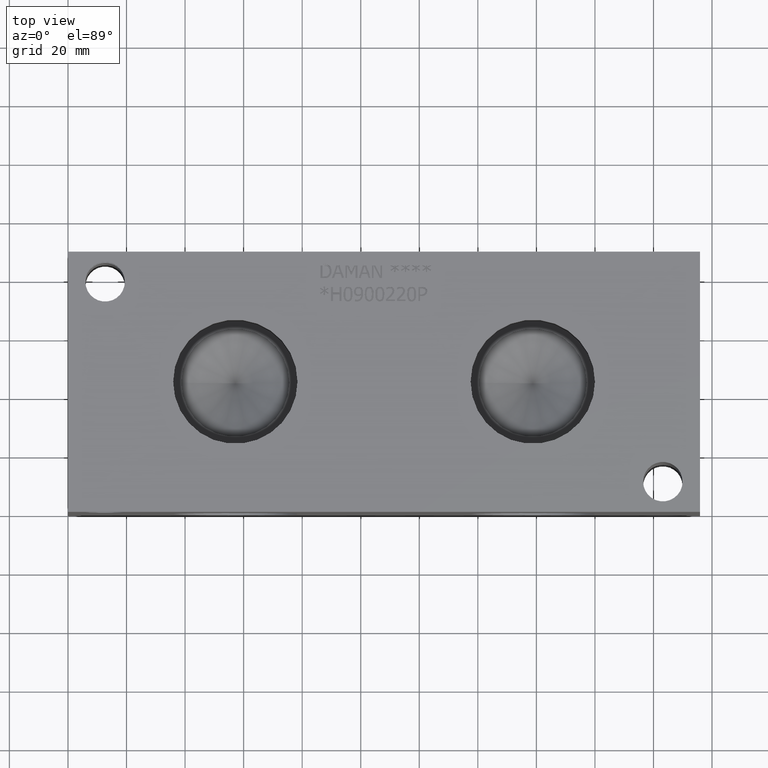
[diagram: clean part render]
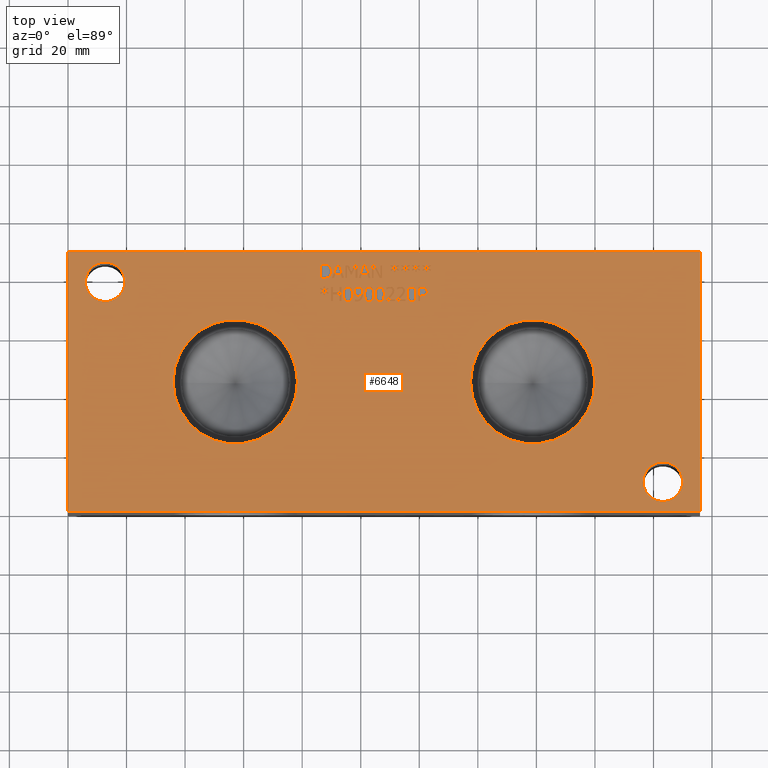
[diagram: same view with one face highlighted and labeled with its STEP entity id]
A machine part, top view. The second image highlights one B-rep face of the part: STEP entity #6648.
In plain terms, the highlighted planar face has unit normal (0, 0, 1).
Its self-contained STEP definition (entity closure, byte-faithful):
#48=CIRCLE('',#7001,6.7437);
#49=CIRCLE('',#7002,6.7437);
#50=CIRCLE('',#7003,6.7437);
#51=CIRCLE('',#7004,6.7437);
#52=CIRCLE('',#7005,21.2344);
#53=CIRCLE('',#7006,21.2344);
#54=CIRCLE('',#7007,21.2344);
#55=CIRCLE('',#7008,21.2344);
#110=B_SPLINE_CURVE_WITH_KNOTS('',2,(#8916,#8917,#8918,#8919),
 .UNSPECIFIED.,.F.,.F.,(3,1,3),(0.,1.,2.),.UNSPECIFIED.);
#112=B_SPLINE_CURVE_WITH_KNOTS('',2,(#8937,#8938,#8939,#8940),
 .UNSPECIFIED.,.F.,.F.,(3,1,3),(0.,1.,2.),.UNSPECIFIED.);
#114=B_SPLINE_CURVE_WITH_KNOTS('',2,(#8974,#8975,#8976,#8977),
 .UNSPECIFIED.,.F.,.F.,(3,1,3),(0.,1.,2.),.UNSPECIFIED.);
#116=B_SPLINE_CURVE_WITH_KNOTS('',2,(#8992,#8993,#8994,#8995),
 .UNSPECIFIED.,.F.,.F.,(3,1,3),(0.,1.,2.),.UNSPECIFIED.);
#118=B_SPLINE_CURVE_WITH_KNOTS('',2,(#9380,#9381,#9382,#9383),
 .UNSPECIFIED.,.F.,.F.,(3,1,3),(0.,1.,2.),.UNSPECIFIED.);
#119=B_SPLINE_CURVE_WITH_KNOTS('',2,(#9385,#9386,#9387,#9388),
 .UNSPECIFIED.,.F.,.F.,(3,1,3),(0.,1.,2.),.UNSPECIFIED.);
#120=B_SPLINE_CURVE_WITH_KNOTS('',2,(#9390,#9391,#9392,#9393),
 .UNSPECIFIED.,.F.,.F.,(3,1,3),(0.,1.,2.),.UNSPECIFIED.);
#121=B_SPLINE_CURVE_WITH_KNOTS('',2,(#9395,#9396,#9397,#9398),
 .UNSPECIFIED.,.F.,.F.,(3,1,3),(0.,1.,2.),.UNSPECIFIED.);
#122=B_SPLINE_CURVE_WITH_KNOTS('',2,(#9400,#9401,#9402,#9403),
 .UNSPECIFIED.,.F.,.F.,(3,1,3),(0.,1.,2.),.UNSPECIFIED.);
#123=B_SPLINE_CURVE_WITH_KNOTS('',2,(#9405,#9406,#9407,#9408),
 .UNSPECIFIED.,.F.,.F.,(3,1,3),(0.,1.,2.),.UNSPECIFIED.);
#124=B_SPLINE_CURVE_WITH_KNOTS('',2,(#9414,#9415,#9416,#9417),
 .UNSPECIFIED.,.F.,.F.,(3,1,3),(0.,1.,2.),.UNSPECIFIED.);
#125=B_SPLINE_CURVE_WITH_KNOTS('',2,(#9419,#9420,#9421,#9422),
 .UNSPECIFIED.,.F.,.F.,(3,1,3),(0.,1.,2.),.UNSPECIFIED.);
#126=B_SPLINE_CURVE_WITH_KNOTS('',2,(#9424,#9425,#9426,#9427),
 .UNSPECIFIED.,.F.,.F.,(3,1,3),(0.,1.,2.),.UNSPECIFIED.);
#127=B_SPLINE_CURVE_WITH_KNOTS('',2,(#9429,#9430,#9431,#9432),
 .UNSPECIFIED.,.F.,.F.,(3,1,3),(0.,1.,2.),.UNSPECIFIED.);
#128=B_SPLINE_CURVE_WITH_KNOTS('',2,(#9434,#9435,#9436,#9437),
 .UNSPECIFIED.,.F.,.F.,(3,1,3),(0.,1.,2.),.UNSPECIFIED.);
#129=B_SPLINE_CURVE_WITH_KNOTS('',2,(#9501,#9502,#9503,#9504),
 .UNSPECIFIED.,.F.,.F.,(3,1,3),(0.,1.,2.),.UNSPECIFIED.);
#130=B_SPLINE_CURVE_WITH_KNOTS('',2,(#9506,#9507,#9508,#9509),
 .UNSPECIFIED.,.F.,.F.,(3,1,3),(0.,1.,2.),.UNSPECIFIED.);
#131=B_SPLINE_CURVE_WITH_KNOTS('',2,(#9511,#9512,#9513,#9514),
 .UNSPECIFIED.,.F.,.F.,(3,1,3),(0.,1.,2.),.UNSPECIFIED.);
#132=B_SPLINE_CURVE_WITH_KNOTS('',2,(#9515,#9516,#9517,#9518),
 .UNSPECIFIED.,.F.,.F.,(3,1,3),(0.,1.,2.),.UNSPECIFIED.);
#133=B_SPLINE_CURVE_WITH_KNOTS('',2,(#9521,#9522,#9523,#9524),
 .UNSPECIFIED.,.F.,.F.,(3,1,3),(0.,1.,2.),.UNSPECIFIED.);
#134=B_SPLINE_CURVE_WITH_KNOTS('',2,(#9526,#9527,#9528,#9529),
 .UNSPECIFIED.,.F.,.F.,(3,1,3),(0.,1.,2.),.UNSPECIFIED.);
#135=B_SPLINE_CURVE_WITH_KNOTS('',2,(#9531,#9532,#9533,#9534),
 .UNSPECIFIED.,.F.,.F.,(3,1,3),(0.,1.,2.),.UNSPECIFIED.);
#136=B_SPLINE_CURVE_WITH_KNOTS('',2,(#9536,#9537,#9538,#9539),
 .UNSPECIFIED.,.F.,.F.,(3,1,3),(0.,1.,2.),.UNSPECIFIED.);
#137=B_SPLINE_CURVE_WITH_KNOTS('',2,(#9541,#9542,#9543,#9544),
 .UNSPECIFIED.,.F.,.F.,(3,1,3),(0.,1.,2.),.UNSPECIFIED.);
#138=B_SPLINE_CURVE_WITH_KNOTS('',2,(#9546,#9547,#9548,#9549),
 .UNSPECIFIED.,.F.,.F.,(3,1,3),(0.,1.,2.),.UNSPECIFIED.);
#139=B_SPLINE_CURVE_WITH_KNOTS('',2,(#9551,#9552,#9553,#9554),
 .UNSPECIFIED.,.F.,.F.,(3,1,3),(0.,1.,2.),.UNSPECIFIED.);
#140=B_SPLINE_CURVE_WITH_KNOTS('',2,(#9556,#9557,#9558,#9559),
 .UNSPECIFIED.,.F.,.F.,(3,1,3),(0.,1.,2.),.UNSPECIFIED.);
#141=B_SPLINE_CURVE_WITH_KNOTS('',2,(#9565,#9566,#9567,#9568),
 .UNSPECIFIED.,.F.,.F.,(3,1,3),(0.,1.,2.),.UNSPECIFIED.);
#142=B_SPLINE_CURVE_WITH_KNOTS('',2,(#9570,#9571,#9572,#9573),
 .UNSPECIFIED.,.F.,.F.,(3,1,3),(0.,1.,2.),.UNSPECIFIED.);
#143=B_SPLINE_CURVE_WITH_KNOTS('',2,(#9575,#9576,#9577,#9578),
 .UNSPECIFIED.,.F.,.F.,(3,1,3),(0.,1.,2.),.UNSPECIFIED.);
#144=B_SPLINE_CURVE_WITH_KNOTS('',2,(#9579,#9580,#9581,#9582),
 .UNSPECIFIED.,.F.,.F.,(3,1,3),(0.,1.,2.),.UNSPECIFIED.);
#145=B_SPLINE_CURVE_WITH_KNOTS('',2,(#9585,#9586,#9587,#9588),
 .UNSPECIFIED.,.F.,.F.,(3,1,3),(0.,1.,2.),.UNSPECIFIED.);
#146=B_SPLINE_CURVE_WITH_KNOTS('',2,(#9590,#9591,#9592,#9593),
 .UNSPECIFIED.,.F.,.F.,(3,1,3),(0.,1.,2.),.UNSPECIFIED.);
#147=B_SPLINE_CURVE_WITH_KNOTS('',2,(#9595,#9596,#9597,#9598),
 .UNSPECIFIED.,.F.,.F.,(3,1,3),(0.,1.,2.),.UNSPECIFIED.);
#148=B_SPLINE_CURVE_WITH_KNOTS('',2,(#9599,#9600,#9601,#9602),
 .UNSPECIFIED.,.F.,.F.,(3,1,3),(0.,1.,2.),.UNSPECIFIED.);
#149=B_SPLINE_CURVE_WITH_KNOTS('',2,(#9605,#9606,#9607,#9608),
 .UNSPECIFIED.,.F.,.F.,(3,1,3),(0.,1.,2.),.UNSPECIFIED.);
#150=B_SPLINE_CURVE_WITH_KNOTS('',2,(#9610,#9611,#9612,#9613),
 .UNSPECIFIED.,.F.,.F.,(3,1,3),(0.,1.,2.),.UNSPECIFIED.);
#151=B_SPLINE_CURVE_WITH_KNOTS('',2,(#9615,#9616,#9617,#9618),
 .UNSPECIFIED.,.F.,.F.,(3,1,3),(0.,1.,2.),.UNSPECIFIED.);
#152=B_SPLINE_CURVE_WITH_KNOTS('',2,(#9619,#9620,#9621,#9622),
 .UNSPECIFIED.,.F.,.F.,(3,1,3),(0.,1.,2.),.UNSPECIFIED.);
#153=B_SPLINE_CURVE_WITH_KNOTS('',2,(#9631,#9632,#9633,#9634),
 .UNSPECIFIED.,.F.,.F.,(3,1,3),(0.,1.,2.),.UNSPECIFIED.);
#154=B_SPLINE_CURVE_WITH_KNOTS('',2,(#9636,#9637,#9638,#9639),
 .UNSPECIFIED.,.F.,.F.,(3,1,3),(0.,1.,2.),.UNSPECIFIED.);
#155=B_SPLINE_CURVE_WITH_KNOTS('',2,(#9641,#9642,#9643,#9644),
 .UNSPECIFIED.,.F.,.F.,(3,1,3),(0.,1.,2.),.UNSPECIFIED.);
#156=B_SPLINE_CURVE_WITH_KNOTS('',2,(#9646,#9647,#9648,#9649),
 .UNSPECIFIED.,.F.,.F.,(3,1,3),(0.,1.,2.),.UNSPECIFIED.);
#157=B_SPLINE_CURVE_WITH_KNOTS('',2,(#9651,#9652,#9653,#9654),
 .UNSPECIFIED.,.F.,.F.,(3,1,3),(0.,1.,2.),.UNSPECIFIED.);
#158=B_SPLINE_CURVE_WITH_KNOTS('',2,(#9656,#9657,#9658,#9659),
 .UNSPECIFIED.,.F.,.F.,(3,1,3),(0.,1.,2.),.UNSPECIFIED.);
#159=B_SPLINE_CURVE_WITH_KNOTS('',2,(#9665,#9666,#9667,#9668),
 .UNSPECIFIED.,.F.,.F.,(3,1,3),(0.,1.,2.),.UNSPECIFIED.);
#160=B_SPLINE_CURVE_WITH_KNOTS('',2,(#9670,#9671,#9672,#9673),
 .UNSPECIFIED.,.F.,.F.,(3,1,3),(0.,1.,2.),.UNSPECIFIED.);
#161=B_SPLINE_CURVE_WITH_KNOTS('',2,(#9675,#9676,#9677,#9678),
 .UNSPECIFIED.,.F.,.F.,(3,1,3),(0.,1.,2.),.UNSPECIFIED.);
#162=B_SPLINE_CURVE_WITH_KNOTS('',2,(#9680,#9681,#9682,#9683),
 .UNSPECIFIED.,.F.,.F.,(3,1,3),(0.,1.,2.),.UNSPECIFIED.);
#163=B_SPLINE_CURVE_WITH_KNOTS('',2,(#9685,#9686,#9687,#9688),
 .UNSPECIFIED.,.F.,.F.,(3,1,3),(0.,1.,2.),.UNSPECIFIED.);
#164=B_SPLINE_CURVE_WITH_KNOTS('',2,(#9692,#9693,#9694,#9695),
 .UNSPECIFIED.,.F.,.F.,(3,1,3),(0.,1.,2.),.UNSPECIFIED.);
#165=B_SPLINE_CURVE_WITH_KNOTS('',2,(#9697,#9698,#9699,#9700),
 .UNSPECIFIED.,.F.,.F.,(3,1,3),(0.,1.,2.),.UNSPECIFIED.);
#166=B_SPLINE_CURVE_WITH_KNOTS('',2,(#9702,#9703,#9704,#9705),
 .UNSPECIFIED.,.F.,.F.,(3,1,3),(0.,1.,2.),.UNSPECIFIED.);
#167=B_SPLINE_CURVE_WITH_KNOTS('',2,(#9706,#9707,#9708,#9709),
 .UNSPECIFIED.,.F.,.F.,(3,1,3),(0.,1.,2.),.UNSPECIFIED.);
#168=B_SPLINE_CURVE_WITH_KNOTS('',2,(#9712,#9713,#9714,#9715),
 .UNSPECIFIED.,.F.,.F.,(3,1,3),(0.,1.,2.),.UNSPECIFIED.);
#169=B_SPLINE_CURVE_WITH_KNOTS('',2,(#9717,#9718,#9719,#9720),
 .UNSPECIFIED.,.F.,.F.,(3,1,3),(0.,1.,2.),.UNSPECIFIED.);
#170=B_SPLINE_CURVE_WITH_KNOTS('',2,(#9722,#9723,#9724,#9725),
 .UNSPECIFIED.,.F.,.F.,(3,1,3),(0.,1.,2.),.UNSPECIFIED.);
#171=B_SPLINE_CURVE_WITH_KNOTS('',2,(#9736,#9737,#9738,#9739),
 .UNSPECIFIED.,.F.,.F.,(3,1,3),(0.,1.,2.),.UNSPECIFIED.);
#420=FACE_BOUND('',#955,.T.);
#421=FACE_BOUND('',#956,.T.);
#422=FACE_BOUND('',#957,.T.);
#423=FACE_BOUND('',#958,.T.);
#424=FACE_BOUND('',#959,.T.);
#425=FACE_BOUND('',#960,.T.);
#426=FACE_BOUND('',#961,.T.);
#427=FACE_BOUND('',#962,.T.);
#428=FACE_BOUND('',#963,.T.);
#429=FACE_BOUND('',#964,.T.);
#430=FACE_BOUND('',#965,.T.);
#431=FACE_BOUND('',#966,.T.);
#432=FACE_BOUND('',#967,.T.);
#433=FACE_BOUND('',#968,.T.);
#434=FACE_BOUND('',#969,.T.);
#435=FACE_BOUND('',#970,.T.);
#436=FACE_BOUND('',#971,.T.);
#437=FACE_BOUND('',#972,.T.);
#438=FACE_BOUND('',#973,.T.);
#439=FACE_BOUND('',#974,.T.);
#440=FACE_BOUND('',#975,.T.);
#441=FACE_BOUND('',#976,.T.);
#442=FACE_BOUND('',#977,.T.);
#605=FACE_OUTER_BOUND('',#954,.T.);
#954=EDGE_LOOP('',(#4768,#4769,#4770,#4771));
#955=EDGE_LOOP('',(#4772,#4773));
#956=EDGE_LOOP('',(#4774,#4775));
#957=EDGE_LOOP('',(#4776,#4777));
#958=EDGE_LOOP('',(#4778,#4779));
#959=EDGE_LOOP('',(#4780,#4781,#4782,#4783,#4784,#4785,#4786,#4787,#4788,
#4789,#4790,#4791,#4792,#4793,#4794,#4795,#4796));
#960=EDGE_LOOP('',(#4797,#4798,#4799,#4800,#4801,#4802,#4803,#4804,#4805,
#4806,#4807,#4808));
#961=EDGE_LOOP('',(#4809,#4810,#4811,#4812,#4813,#4814,#4815,#4816,#4817,
#4818,#4819,#4820,#4821,#4822,#4823,#4824,#4825,#4826));
#962=EDGE_LOOP('',(#4827,#4828,#4829,#4830));
#963=EDGE_LOOP('',(#4831,#4832,#4833,#4834,#4835,#4836,#4837,#4838,#4839,
#4840,#4841,#4842,#4843,#4844));
#964=EDGE_LOOP('',(#4845,#4846,#4847,#4848));
#965=EDGE_LOOP('',(#4849,#4850,#4851,#4852));
#966=EDGE_LOOP('',(#4853,#4854,#4855,#4856,#4857,#4858,#4859,#4860,#4861,
#4862,#4863,#4864,#4865,#4866,#4867,#4868,#4869));
#967=EDGE_LOOP('',(#4870,#4871,#4872,#4873));
#968=EDGE_LOOP('',(#4874,#4875,#4876,#4877,#4878,#4879,#4880,#4881,#4882));
#969=EDGE_LOOP('',(#4883,#4884,#4885,#4886,#4887,#4888,#4889,#4890,#4891,
#4892,#4893,#4894,#4895,#4896,#4897,#4898,#4899,#4900));
#970=EDGE_LOOP('',(#4901,#4902,#4903,#4904,#4905,#4906,#4907,#4908,#4909,
#4910,#4911,#4912,#4913,#4914,#4915,#4916,#4917,#4918));
#971=EDGE_LOOP('',(#4919,#4920,#4921,#4922,#4923,#4924,#4925,#4926,#4927,
#4928));
#972=EDGE_LOOP('',(#4929,#4930,#4931,#4932,#4933,#4934,#4935,#4936));
#973=EDGE_LOOP('',(#4937,#4938,#4939,#4940,#4941,#4942,#4943));
#974=EDGE_LOOP('',(#4944,#4945,#4946,#4947,#4948,#4949,#4950,#4951));
#975=EDGE_LOOP('',(#4952,#4953,#4954,#4955,#4956,#4957,#4958,#4959,#4960,
#4961,#4962,#4963,#4964));
#976=EDGE_LOOP('',(#4965,#4966,#4967,#4968,#4969,#4970,#4971,#4972,#4973,
#4974,#4975,#4976,#4977,#4978,#4979,#4980,#4981,#4982));
#977=EDGE_LOOP('',(#4983,#4984,#4985,#4986,#4987,#4988,#4989,#4990,#4991,
#4992,#4993,#4994,#4995,#4996,#4997,#4998,#4999,#5000));
#1205=LINE('',#8451,#1873);
#1209=LINE('',#8459,#1877);
#1212=LINE('',#8465,#1880);
#1215=LINE('',#8471,#1883);
#1218=LINE('',#8477,#1886);
#1221=LINE('',#8483,#1889);
#1224=LINE('',#8489,#1892);
#1227=LINE('',#8495,#1895);
#1230=LINE('',#8501,#1898);
#1233=LINE('',#8507,#1901);
#1236=LINE('',#8513,#1904);
#1239=LINE('',#8519,#1907);
#1242=LINE('',#8525,#1910);
#1245=LINE('',#8531,#1913);
#1248=LINE('',#8537,#1916);
#1251=LINE('',#8543,#1919);
#1254=LINE('',#8549,#1922);
#1257=LINE('',#8554,#1925);
#1259=LINE('',#8560,#1927);
#1263=LINE('',#8568,#1931);
#1266=LINE('',#8574,#1934);
#1269=LINE('',#8580,#1937);
#1272=LINE('',#8586,#1940);
#1275=LINE('',#8592,#1943);
#1278=LINE('',#8598,#1946);
#1281=LINE('',#8604,#1949);
#1284=LINE('',#8610,#1952);
#1287=LINE('',#8616,#1955);
#1290=LINE('',#8622,#1958);
#1293=LINE('',#8628,#1961);
#1296=LINE('',#8634,#1964);
#1299=LINE('',#8640,#1967);
#1302=LINE('',#8646,#1970);
#1305=LINE('',#8652,#1973);
#1308=LINE('',#8658,#1976);
#1311=LINE('',#8663,#1979);
#1313=LINE('',#8669,#1981);
#1317=LINE('',#8677,#1985);
#1320=LINE('',#8683,#1988);
#1323=LINE('',#8689,#1991);
#1326=LINE('',#8695,#1994);
#1329=LINE('',#8701,#1997);
#1332=LINE('',#8707,#2000);
#1335=LINE('',#8713,#2003);
#1338=LINE('',#8719,#2006);
#1341=LINE('',#8725,#2009);
#1344=LINE('',#8731,#2012);
#1347=LINE('',#8737,#2015);
#1350=LINE('',#8742,#2018);
#1361=LINE('',#8766,#2029);
#1365=LINE('',#8774,#2033);
#1368=LINE('',#8780,#2036);
#1371=LINE('',#8786,#2039);
#1374=LINE('',#8792,#2042);
#1377=LINE('',#8798,#2045);
#1380=LINE('',#8804,#2048);
#1383=LINE('',#8809,#2051);
#1401=LINE('',#8949,#2069);
#1404=LINE('',#8955,#2072);
#1407=LINE('',#8961,#2075);
#1420=LINE('',#9022,#2088);
#1424=LINE('',#9030,#2092);
#1427=LINE('',#9036,#2095);
#1430=LINE('',#9042,#2098);
#1433=LINE('',#9048,#2101);
#1436=LINE('',#9054,#2104);
#1439=LINE('',#9060,#2107);
#1442=LINE('',#9065,#2110);
#1444=LINE('',#9071,#2112);
#1448=LINE('',#9079,#2116);
#1451=LINE('',#9085,#2119);
#1454=LINE('',#9091,#2122);
#1457=LINE('',#9097,#2125);
#1460=LINE('',#9103,#2128);
#1463=LINE('',#9109,#2131);
#1466=LINE('',#9115,#2134);
#1469=LINE('',#9121,#2137);
#1472=LINE('',#9126,#2140);
#1474=LINE('',#9132,#2142);
#1478=LINE('',#9140,#2146);
#1481=LINE('',#9146,#2149);
#1484=LINE('',#9152,#2152);
#1487=LINE('',#9158,#2155);
#1490=LINE('',#9164,#2158);
#1493=LINE('',#9170,#2161);
#1496=LINE('',#9176,#2164);
#1499=LINE('',#9182,#2167);
#1502=LINE('',#9188,#2170);
#1505=LINE('',#9194,#2173);
#1508=LINE('',#9200,#2176);
#1511=LINE('',#9206,#2179);
#1514=LINE('',#9212,#2182);
#1517=LINE('',#9218,#2185);
#1520=LINE('',#9224,#2188);
#1523=LINE('',#9230,#2191);
#1526=LINE('',#9235,#2194);
#1528=LINE('',#9241,#2196);
#1532=LINE('',#9249,#2200);
#1535=LINE('',#9255,#2203);
#1538=LINE('',#9261,#2206);
#1541=LINE('',#9267,#2209);
#1544=LINE('',#9273,#2212);
#1547=LINE('',#9279,#2215);
#1550=LINE('',#9285,#2218);
#1553=LINE('',#9291,#2221);
#1556=LINE('',#9297,#2224);
#1559=LINE('',#9303,#2227);
#1562=LINE('',#9309,#2230);
#1565=LINE('',#9315,#2233);
#1568=LINE('',#9321,#2236);
#1571=LINE('',#9327,#2239);
#1574=LINE('',#9333,#2242);
#1577=LINE('',#9339,#2245);
#1580=LINE('',#9344,#2248);
#1582=LINE('',#9350,#2250);
#1583=LINE('',#9352,#2251);
#1584=LINE('',#9354,#2252);
#1585=LINE('',#9355,#2253);
#1586=LINE('',#9374,#2254);
#1587=LINE('',#9376,#2255);
#1588=LINE('',#9378,#2256);
#1589=LINE('',#9410,#2257);
#1590=LINE('',#9412,#2258);
#1591=LINE('',#9438,#2259);
#1592=LINE('',#9441,#2260);
#1593=LINE('',#9443,#2261);
#1594=LINE('',#9445,#2262);
#1595=LINE('',#9447,#2263);
#1596=LINE('',#9449,#2264);
#1597=LINE('',#9451,#2265);
#1598=LINE('',#9453,#2266);
#1599=LINE('',#9455,#2267);
#1600=LINE('',#9457,#2268);
#1601=LINE('',#9459,#2269);
#1602=LINE('',#9461,#2270);
#1603=LINE('',#9462,#2271);
#1604=LINE('',#9465,#2272);
#1605=LINE('',#9467,#2273);
#1606=LINE('',#9469,#2274);
#1607=LINE('',#9471,#2275);
#1608=LINE('',#9473,#2276);
#1609=LINE('',#9475,#2277);
#1610=LINE('',#9477,#2278);
#1611=LINE('',#9479,#2279);
#1612=LINE('',#9481,#2280);
#1613=LINE('',#9483,#2281);
#1614=LINE('',#9485,#2282);
#1615=LINE('',#9487,#2283);
#1616=LINE('',#9489,#2284);
#1617=LINE('',#9491,#2285);
#1618=LINE('',#9493,#2286);
#1619=LINE('',#9495,#2287);
#1620=LINE('',#9497,#2288);
#1621=LINE('',#9498,#2289);
#1622=LINE('',#9561,#2290);
#1623=LINE('',#9563,#2291);
#1624=LINE('',#9625,#2292);
#1625=LINE('',#9627,#2293);
#1626=LINE('',#9629,#2294);
#1627=LINE('',#9661,#2295);
#1628=LINE('',#9663,#2296);
#1629=LINE('',#9689,#2297);
#1630=LINE('',#9727,#2298);
#1631=LINE('',#9729,#2299);
#1632=LINE('',#9731,#2300);
#1633=LINE('',#9733,#2301);
#1634=LINE('',#9735,#2302);
#1873=VECTOR('',#7175,10.);
#1877=VECTOR('',#7181,10.);
#1880=VECTOR('',#7186,10.);
#1883=VECTOR('',#7191,10.);
#1886=VECTOR('',#7196,10.);
#1889=VECTOR('',#7201,10.);
#1892=VECTOR('',#7206,10.);
#1895=VECTOR('',#7211,10.);
#1898=VECTOR('',#7216,10.);
#1901=VECTOR('',#7221,10.);
#1904=VECTOR('',#7226,10.);
#1907=VECTOR('',#7231,10.);
#1910=VECTOR('',#7236,10.);
#1913=VECTOR('',#7241,10.);
#1916=VECTOR('',#7246,10.);
#1919=VECTOR('',#7251,10.);
#1922=VECTOR('',#7256,10.);
#1925=VECTOR('',#7261,10.);
#1927=VECTOR('',#7267,10.);
#1931=VECTOR('',#7273,10.);
#1934=VECTOR('',#7278,10.);
#1937=VECTOR('',#7283,10.);
#1940=VECTOR('',#7288,10.);
#1943=VECTOR('',#7293,10.);
#1946=VECTOR('',#7298,10.);
#1949=VECTOR('',#7303,10.);
#1952=VECTOR('',#7308,10.);
#1955=VECTOR('',#7313,10.);
#1958=VECTOR('',#7318,10.);
#1961=VECTOR('',#7323,10.);
#1964=VECTOR('',#7328,10.);
#1967=VECTOR('',#7333,10.);
#1970=VECTOR('',#7338,10.);
#1973=VECTOR('',#7343,10.);
#1976=VECTOR('',#7348,10.);
#1979=VECTOR('',#7353,10.);
#1981=VECTOR('',#7359,10.);
#1985=VECTOR('',#7365,10.);
#1988=VECTOR('',#7370,10.);
#1991=VECTOR('',#7375,10.);
#1994=VECTOR('',#7380,10.);
#1997=VECTOR('',#7385,10.);
#2000=VECTOR('',#7390,10.);
#2003=VECTOR('',#7395,10.);
#2006=VECTOR('',#7400,10.);
#2009=VECTOR('',#7405,10.);
#2012=VECTOR('',#7410,10.);
#2015=VECTOR('',#7415,10.);
#2018=VECTOR('',#7420,10.);
#2029=VECTOR('',#7441,10.);
#2033=VECTOR('',#7447,10.);
#2036=VECTOR('',#7452,10.);
#2039=VECTOR('',#7457,10.);
#2042=VECTOR('',#7462,10.);
#2045=VECTOR('',#7467,10.);
#2048=VECTOR('',#7472,10.);
#2051=VECTOR('',#7477,10.);
#2069=VECTOR('',#7505,10.);
#2072=VECTOR('',#7510,10.);
#2075=VECTOR('',#7515,10.);
#2088=VECTOR('',#7538,10.);
#2092=VECTOR('',#7544,10.);
#2095=VECTOR('',#7549,10.);
#2098=VECTOR('',#7554,10.);
#2101=VECTOR('',#7559,10.);
#2104=VECTOR('',#7564,10.);
#2107=VECTOR('',#7569,10.);
#2110=VECTOR('',#7574,10.);
#2112=VECTOR('',#7580,10.);
#2116=VECTOR('',#7586,10.);
#2119=VECTOR('',#7591,10.);
#2122=VECTOR('',#7596,10.);
#2125=VECTOR('',#7601,10.);
#2128=VECTOR('',#7606,10.);
#2131=VECTOR('',#7611,10.);
#2134=VECTOR('',#7616,10.);
#2137=VECTOR('',#7621,10.);
#2140=VECTOR('',#7626,10.);
#2142=VECTOR('',#7632,10.);
#2146=VECTOR('',#7638,10.);
#2149=VECTOR('',#7643,10.);
#2152=VECTOR('',#7648,10.);
#2155=VECTOR('',#7653,10.);
#2158=VECTOR('',#7658,10.);
#2161=VECTOR('',#7663,10.);
#2164=VECTOR('',#7668,10.);
#2167=VECTOR('',#7673,10.);
#2170=VECTOR('',#7678,10.);
#2173=VECTOR('',#7683,10.);
#2176=VECTOR('',#7688,10.);
#2179=VECTOR('',#7693,10.);
#2182=VECTOR('',#7698,10.);
#2185=VECTOR('',#7703,10.);
#2188=VECTOR('',#7708,10.);
#2191=VECTOR('',#7713,10.);
#2194=VECTOR('',#7718,10.);
#2196=VECTOR('',#7724,10.);
#2200=VECTOR('',#7730,10.);
#2203=VECTOR('',#7735,10.);
#2206=VECTOR('',#7740,10.);
#2209=VECTOR('',#7745,10.);
#2212=VECTOR('',#7750,10.);
#2215=VECTOR('',#7755,10.);
#2218=VECTOR('',#7760,10.);
#2221=VECTOR('',#7765,10.);
#2224=VECTOR('',#7770,10.);
#2227=VECTOR('',#7775,10.);
#2230=VECTOR('',#7780,10.);
#2233=VECTOR('',#7785,10.);
#2236=VECTOR('',#7790,10.);
#2239=VECTOR('',#7795,10.);
#2242=VECTOR('',#7800,10.);
#2245=VECTOR('',#7805,10.);
#2248=VECTOR('',#7810,10.);
#2250=VECTOR('',#7816,10.);
#2251=VECTOR('',#7817,10.);
#2252=VECTOR('',#7818,10.);
#2253=VECTOR('',#7819,10.);
#2254=VECTOR('',#7836,10.);
#2255=VECTOR('',#7837,10.);
#2256=VECTOR('',#7838,10.);
#2257=VECTOR('',#7839,10.);
#2258=VECTOR('',#7840,10.);
#2259=VECTOR('',#7841,10.);
#2260=VECTOR('',#7842,10.);
#2261=VECTOR('',#7843,10.);
#2262=VECTOR('',#7844,10.);
#2263=VECTOR('',#7845,10.);
#2264=VECTOR('',#7846,10.);
#2265=VECTOR('',#7847,10.);
#2266=VECTOR('',#7848,10.);
#2267=VECTOR('',#7849,10.);
#2268=VECTOR('',#7850,10.);
#2269=VECTOR('',#7851,10.);
#2270=VECTOR('',#7852,10.);
#2271=VECTOR('',#7853,10.);
#2272=VECTOR('',#7854,10.);
#2273=VECTOR('',#7855,10.);
#2274=VECTOR('',#7856,10.);
#2275=VECTOR('',#7857,10.);
#2276=VECTOR('',#7858,10.);
#2277=VECTOR('',#7859,10.);
#2278=VECTOR('',#7860,10.);
#2279=VECTOR('',#7861,10.);
#2280=VECTOR('',#7862,10.);
#2281=VECTOR('',#7863,10.);
#2282=VECTOR('',#7864,10.);
#2283=VECTOR('',#7865,10.);
#2284=VECTOR('',#7866,10.);
#2285=VECTOR('',#7867,10.);
#2286=VECTOR('',#7868,10.);
#2287=VECTOR('',#7869,10.);
#2288=VECTOR('',#7870,10.);
#2289=VECTOR('',#7871,10.);
#2290=VECTOR('',#7872,10.);
#2291=VECTOR('',#7873,10.);
#2292=VECTOR('',#7874,10.);
#2293=VECTOR('',#7875,10.);
#2294=VECTOR('',#7876,10.);
#2295=VECTOR('',#7877,10.);
#2296=VECTOR('',#7878,10.);
#2297=VECTOR('',#7879,10.);
#2298=VECTOR('',#7880,10.);
#2299=VECTOR('',#7881,10.);
#2300=VECTOR('',#7882,10.);
#2301=VECTOR('',#7883,10.);
#2302=VECTOR('',#7884,10.);
#2541=VERTEX_POINT('',#8449);
#2542=VERTEX_POINT('',#8450);
#2545=VERTEX_POINT('',#8458);
#2547=VERTEX_POINT('',#8464);
#2549=VERTEX_POINT('',#8470);
#2551=VERTEX_POINT('',#8476);
#2553=VERTEX_POINT('',#8482);
#2555=VERTEX_POINT('',#8488);
#2557=VERTEX_POINT('',#8494);
#2559=VERTEX_POINT('',#8500);
#2561=VERTEX_POINT('',#8506);
#2563=VERTEX_POINT('',#8512);
#2565=VERTEX_POINT('',#8518);
#2567=VERTEX_POINT('',#8524);
#2569=VERTEX_POINT('',#8530);
#2571=VERTEX_POINT('',#8536);
#2573=VERTEX_POINT('',#8542);
#2575=VERTEX_POINT('',#8548);
#2577=VERTEX_POINT('',#8558);
#2578=VERTEX_POINT('',#8559);
#2581=VERTEX_POINT('',#8567);
#2583=VERTEX_POINT('',#8573);
#2585=VERTEX_POINT('',#8579);
#2587=VERTEX_POINT('',#8585);
#2589=VERTEX_POINT('',#8591);
#2591=VERTEX_POINT('',#8597);
#2593=VERTEX_POINT('',#8603);
#2595=VERTEX_POINT('',#8609);
#2597=VERTEX_POINT('',#8615);
#2599=VERTEX_POINT('',#8621);
#2601=VERTEX_POINT('',#8627);
#2603=VERTEX_POINT('',#8633);
#2605=VERTEX_POINT('',#8639);
#2607=VERTEX_POINT('',#8645);
#2609=VERTEX_POINT('',#8651);
#2611=VERTEX_POINT('',#8657);
#2613=VERTEX_POINT('',#8667);
#2614=VERTEX_POINT('',#8668);
#2617=VERTEX_POINT('',#8676);
#2619=VERTEX_POINT('',#8682);
#2621=VERTEX_POINT('',#8688);
#2623=VERTEX_POINT('',#8694);
#2625=VERTEX_POINT('',#8700);
#2627=VERTEX_POINT('',#8706);
#2629=VERTEX_POINT('',#8712);
#2631=VERTEX_POINT('',#8718);
#2633=VERTEX_POINT('',#8724);
#2635=VERTEX_POINT('',#8730);
#2637=VERTEX_POINT('',#8736);
#2645=VERTEX_POINT('',#8764);
#2646=VERTEX_POINT('',#8765);
#2649=VERTEX_POINT('',#8773);
#2651=VERTEX_POINT('',#8779);
#2653=VERTEX_POINT('',#8785);
#2655=VERTEX_POINT('',#8791);
#2657=VERTEX_POINT('',#8797);
#2659=VERTEX_POINT('',#8803);
#2675=VERTEX_POINT('',#8914);
#2676=VERTEX_POINT('',#8915);
#2679=VERTEX_POINT('',#8936);
#2681=VERTEX_POINT('',#8948);
#2683=VERTEX_POINT('',#8954);
#2685=VERTEX_POINT('',#8960);
#2687=VERTEX_POINT('',#8973);
#2695=VERTEX_POINT('',#9020);
#2696=VERTEX_POINT('',#9021);
#2699=VERTEX_POINT('',#9029);
#2701=VERTEX_POINT('',#9035);
#2703=VERTEX_POINT('',#9041);
#2705=VERTEX_POINT('',#9047);
#2707=VERTEX_POINT('',#9053);
#2709=VERTEX_POINT('',#9059);
#2711=VERTEX_POINT('',#9069);
#2712=VERTEX_POINT('',#9070);
#2715=VERTEX_POINT('',#9078);
#2717=VERTEX_POINT('',#9084);
#2719=VERTEX_POINT('',#9090);
#2721=VERTEX_POINT('',#9096);
#2723=VERTEX_POINT('',#9102);
#2725=VERTEX_POINT('',#9108);
#2727=VERTEX_POINT('',#9114);
#2729=VERTEX_POINT('',#9120);
#2731=VERTEX_POINT('',#9130);
#2732=VERTEX_POINT('',#9131);
#2735=VERTEX_POINT('',#9139);
#2737=VERTEX_POINT('',#9145);
#2739=VERTEX_POINT('',#9151);
#2741=VERTEX_POINT('',#9157);
#2743=VERTEX_POINT('',#9163);
#2745=VERTEX_POINT('',#9169);
#2747=VERTEX_POINT('',#9175);
#2749=VERTEX_POINT('',#9181);
#2751=VERTEX_POINT('',#9187);
#2753=VERTEX_POINT('',#9193);
#2755=VERTEX_POINT('',#9199);
#2757=VERTEX_POINT('',#9205);
#2759=VERTEX_POINT('',#9211);
#2761=VERTEX_POINT('',#9217);
#2763=VERTEX_POINT('',#9223);
#2765=VERTEX_POINT('',#9229);
#2767=VERTEX_POINT('',#9239);
#2768=VERTEX_POINT('',#9240);
#2771=VERTEX_POINT('',#9248);
#2773=VERTEX_POINT('',#9254);
#2775=VERTEX_POINT('',#9260);
#2777=VERTEX_POINT('',#9266);
#2779=VERTEX_POINT('',#9272);
#2781=VERTEX_POINT('',#9278);
#2783=VERTEX_POINT('',#9284);
#2785=VERTEX_POINT('',#9290);
#2787=VERTEX_POINT('',#9296);
#2789=VERTEX_POINT('',#9302);
#2791=VERTEX_POINT('',#9308);
#2793=VERTEX_POINT('',#9314);
#2795=VERTEX_POINT('',#9320);
#2797=VERTEX_POINT('',#9326);
#2799=VERTEX_POINT('',#9332);
#2801=VERTEX_POINT('',#9338);
#2803=VERTEX_POINT('',#9348);
#2804=VERTEX_POINT('',#9349);
#2805=VERTEX_POINT('',#9351);
#2806=VERTEX_POINT('',#9353);
#2807=VERTEX_POINT('',#9356);
#2808=VERTEX_POINT('',#9357);
#2809=VERTEX_POINT('',#9360);
#2810=VERTEX_POINT('',#9361);
#2811=VERTEX_POINT('',#9364);
#2812=VERTEX_POINT('',#9365);
#2813=VERTEX_POINT('',#9368);
#2814=VERTEX_POINT('',#9369);
#2815=VERTEX_POINT('',#9372);
#2816=VERTEX_POINT('',#9373);
#2817=VERTEX_POINT('',#9375);
#2818=VERTEX_POINT('',#9377);
#2819=VERTEX_POINT('',#9379);
#2820=VERTEX_POINT('',#9384);
#2821=VERTEX_POINT('',#9389);
#2822=VERTEX_POINT('',#9394);
#2823=VERTEX_POINT('',#9399);
#2824=VERTEX_POINT('',#9404);
#2825=VERTEX_POINT('',#9409);
#2826=VERTEX_POINT('',#9411);
#2827=VERTEX_POINT('',#9413);
#2828=VERTEX_POINT('',#9418);
#2829=VERTEX_POINT('',#9423);
#2830=VERTEX_POINT('',#9428);
#2831=VERTEX_POINT('',#9433);
#2832=VERTEX_POINT('',#9439);
#2833=VERTEX_POINT('',#9440);
#2834=VERTEX_POINT('',#9442);
#2835=VERTEX_POINT('',#9444);
#2836=VERTEX_POINT('',#9446);
#2837=VERTEX_POINT('',#9448);
#2838=VERTEX_POINT('',#9450);
#2839=VERTEX_POINT('',#9452);
#2840=VERTEX_POINT('',#9454);
#2841=VERTEX_POINT('',#9456);
#2842=VERTEX_POINT('',#9458);
#2843=VERTEX_POINT('',#9460);
#2844=VERTEX_POINT('',#9463);
#2845=VERTEX_POINT('',#9464);
#2846=VERTEX_POINT('',#9466);
#2847=VERTEX_POINT('',#9468);
#2848=VERTEX_POINT('',#9470);
#2849=VERTEX_POINT('',#9472);
#2850=VERTEX_POINT('',#9474);
#2851=VERTEX_POINT('',#9476);
#2852=VERTEX_POINT('',#9478);
#2853=VERTEX_POINT('',#9480);
#2854=VERTEX_POINT('',#9482);
#2855=VERTEX_POINT('',#9484);
#2856=VERTEX_POINT('',#9486);
#2857=VERTEX_POINT('',#9488);
#2858=VERTEX_POINT('',#9490);
#2859=VERTEX_POINT('',#9492);
#2860=VERTEX_POINT('',#9494);
#2861=VERTEX_POINT('',#9496);
#2862=VERTEX_POINT('',#9499);
#2863=VERTEX_POINT('',#9500);
#2864=VERTEX_POINT('',#9505);
#2865=VERTEX_POINT('',#9510);
#2866=VERTEX_POINT('',#9519);
#2867=VERTEX_POINT('',#9520);
#2868=VERTEX_POINT('',#9525);
#2869=VERTEX_POINT('',#9530);
#2870=VERTEX_POINT('',#9535);
#2871=VERTEX_POINT('',#9540);
#2872=VERTEX_POINT('',#9545);
#2873=VERTEX_POINT('',#9550);
#2874=VERTEX_POINT('',#9555);
#2875=VERTEX_POINT('',#9560);
#2876=VERTEX_POINT('',#9562);
#2877=VERTEX_POINT('',#9564);
#2878=VERTEX_POINT('',#9569);
#2879=VERTEX_POINT('',#9574);
#2880=VERTEX_POINT('',#9583);
#2881=VERTEX_POINT('',#9584);
#2882=VERTEX_POINT('',#9589);
#2883=VERTEX_POINT('',#9594);
#2884=VERTEX_POINT('',#9603);
#2885=VERTEX_POINT('',#9604);
#2886=VERTEX_POINT('',#9609);
#2887=VERTEX_POINT('',#9614);
#2888=VERTEX_POINT('',#9623);
#2889=VERTEX_POINT('',#9624);
#2890=VERTEX_POINT('',#9626);
#2891=VERTEX_POINT('',#9628);
#2892=VERTEX_POINT('',#9630);
#2893=VERTEX_POINT('',#9635);
#2894=VERTEX_POINT('',#9640);
#2895=VERTEX_POINT('',#9645);
#2896=VERTEX_POINT('',#9650);
#2897=VERTEX_POINT('',#9655);
#2898=VERTEX_POINT('',#9660);
#2899=VERTEX_POINT('',#9662);
#2900=VERTEX_POINT('',#9664);
#2901=VERTEX_POINT('',#9669);
#2902=VERTEX_POINT('',#9674);
#2903=VERTEX_POINT('',#9679);
#2904=VERTEX_POINT('',#9684);
#2905=VERTEX_POINT('',#9690);
#2906=VERTEX_POINT('',#9691);
#2907=VERTEX_POINT('',#9696);
#2908=VERTEX_POINT('',#9701);
#2909=VERTEX_POINT('',#9710);
#2910=VERTEX_POINT('',#9711);
#2911=VERTEX_POINT('',#9716);
#2912=VERTEX_POINT('',#9721);
#2913=VERTEX_POINT('',#9726);
#2914=VERTEX_POINT('',#9728);
#2915=VERTEX_POINT('',#9730);
#2916=VERTEX_POINT('',#9732);
#2917=VERTEX_POINT('',#9734);
#3173=EDGE_CURVE('',#2541,#2542,#1205,.T.);
#3177=EDGE_CURVE('',#2545,#2541,#1209,.T.);
#3180=EDGE_CURVE('',#2547,#2545,#1212,.T.);
#3183=EDGE_CURVE('',#2549,#2547,#1215,.T.);
#3186=EDGE_CURVE('',#2551,#2549,#1218,.T.);
#3189=EDGE_CURVE('',#2553,#2551,#1221,.T.);
#3192=EDGE_CURVE('',#2555,#2553,#1224,.T.);
#3195=EDGE_CURVE('',#2557,#2555,#1227,.T.);
#3198=EDGE_CURVE('',#2559,#2557,#1230,.T.);
#3201=EDGE_CURVE('',#2561,#2559,#1233,.T.);
#3204=EDGE_CURVE('',#2563,#2561,#1236,.T.);
#3207=EDGE_CURVE('',#2565,#2563,#1239,.T.);
#3210=EDGE_CURVE('',#2567,#2565,#1242,.T.);
#3213=EDGE_CURVE('',#2569,#2567,#1245,.T.);
#3216=EDGE_CURVE('',#2571,#2569,#1248,.T.);
#3219=EDGE_CURVE('',#2573,#2571,#1251,.T.);
#3222=EDGE_CURVE('',#2575,#2573,#1254,.T.);
#3225=EDGE_CURVE('',#2542,#2575,#1257,.T.);
#3227=EDGE_CURVE('',#2577,#2578,#1259,.T.);
#3231=EDGE_CURVE('',#2581,#2577,#1263,.T.);
#3234=EDGE_CURVE('',#2583,#2581,#1266,.T.);
#3237=EDGE_CURVE('',#2585,#2583,#1269,.T.);
#3240=EDGE_CURVE('',#2587,#2585,#1272,.T.);
#3243=EDGE_CURVE('',#2589,#2587,#1275,.T.);
#3246=EDGE_CURVE('',#2591,#2589,#1278,.T.);
#3249=EDGE_CURVE('',#2593,#2591,#1281,.T.);
#3252=EDGE_CURVE('',#2595,#2593,#1284,.T.);
#3255=EDGE_CURVE('',#2597,#2595,#1287,.T.);
#3258=EDGE_CURVE('',#2599,#2597,#1290,.T.);
#3261=EDGE_CURVE('',#2601,#2599,#1293,.T.);
#3264=EDGE_CURVE('',#2603,#2601,#1296,.T.);
#3267=EDGE_CURVE('',#2605,#2603,#1299,.T.);
#3270=EDGE_CURVE('',#2607,#2605,#1302,.T.);
#3273=EDGE_CURVE('',#2609,#2607,#1305,.T.);
#3276=EDGE_CURVE('',#2611,#2609,#1308,.T.);
#3279=EDGE_CURVE('',#2578,#2611,#1311,.T.);
#3281=EDGE_CURVE('',#2613,#2614,#1313,.T.);
#3285=EDGE_CURVE('',#2617,#2613,#1317,.T.);
#3288=EDGE_CURVE('',#2619,#2617,#1320,.T.);
#3291=EDGE_CURVE('',#2621,#2619,#1323,.T.);
#3294=EDGE_CURVE('',#2623,#2621,#1326,.T.);
#3297=EDGE_CURVE('',#2625,#2623,#1329,.T.);
#3300=EDGE_CURVE('',#2627,#2625,#1332,.T.);
#3303=EDGE_CURVE('',#2629,#2627,#1335,.T.);
#3306=EDGE_CURVE('',#2631,#2629,#1338,.T.);
#3309=EDGE_CURVE('',#2633,#2631,#1341,.T.);
#3312=EDGE_CURVE('',#2635,#2633,#1344,.T.);
#3315=EDGE_CURVE('',#2637,#2635,#1347,.T.);
#3318=EDGE_CURVE('',#2614,#2637,#1350,.T.);
#3329=EDGE_CURVE('',#2645,#2646,#1361,.T.);
#3333=EDGE_CURVE('',#2649,#2645,#1365,.T.);
#3336=EDGE_CURVE('',#2651,#2649,#1368,.T.);
#3339=EDGE_CURVE('',#2653,#2651,#1371,.T.);
#3342=EDGE_CURVE('',#2655,#2653,#1374,.T.);
#3345=EDGE_CURVE('',#2657,#2655,#1377,.T.);
#3348=EDGE_CURVE('',#2659,#2657,#1380,.T.);
#3351=EDGE_CURVE('',#2646,#2659,#1383,.T.);
#3374=EDGE_CURVE('',#2675,#2676,#110,.T.);
#3378=EDGE_CURVE('',#2679,#2675,#112,.T.);
#3381=EDGE_CURVE('',#2681,#2679,#1401,.T.);
#3384=EDGE_CURVE('',#2683,#2681,#1404,.T.);
#3387=EDGE_CURVE('',#2685,#2683,#1407,.T.);
#3390=EDGE_CURVE('',#2687,#2685,#114,.T.);
#3393=EDGE_CURVE('',#2676,#2687,#116,.T.);
#3404=EDGE_CURVE('',#2695,#2696,#1420,.T.);
#3408=EDGE_CURVE('',#2699,#2695,#1424,.T.);
#3411=EDGE_CURVE('',#2701,#2699,#1427,.T.);
#3414=EDGE_CURVE('',#2703,#2701,#1430,.T.);
#3417=EDGE_CURVE('',#2705,#2703,#1433,.T.);
#3420=EDGE_CURVE('',#2707,#2705,#1436,.T.);
#3423=EDGE_CURVE('',#2709,#2707,#1439,.T.);
#3426=EDGE_CURVE('',#2696,#2709,#1442,.T.);
#3428=EDGE_CURVE('',#2711,#2712,#1444,.T.);
#3432=EDGE_CURVE('',#2715,#2711,#1448,.T.);
#3435=EDGE_CURVE('',#2717,#2715,#1451,.T.);
#3438=EDGE_CURVE('',#2719,#2717,#1454,.T.);
#3441=EDGE_CURVE('',#2721,#2719,#1457,.T.);
#3444=EDGE_CURVE('',#2723,#2721,#1460,.T.);
#3447=EDGE_CURVE('',#2725,#2723,#1463,.T.);
#3450=EDGE_CURVE('',#2727,#2725,#1466,.T.);
#3453=EDGE_CURVE('',#2729,#2727,#1469,.T.);
#3456=EDGE_CURVE('',#2712,#2729,#1472,.T.);
#3458=EDGE_CURVE('',#2731,#2732,#1474,.T.);
#3462=EDGE_CURVE('',#2735,#2731,#1478,.T.);
#3465=EDGE_CURVE('',#2737,#2735,#1481,.T.);
#3468=EDGE_CURVE('',#2739,#2737,#1484,.T.);
#3471=EDGE_CURVE('',#2741,#2739,#1487,.T.);
#3474=EDGE_CURVE('',#2743,#2741,#1490,.T.);
#3477=EDGE_CURVE('',#2745,#2743,#1493,.T.);
#3480=EDGE_CURVE('',#2747,#2745,#1496,.T.);
#3483=EDGE_CURVE('',#2749,#2747,#1499,.T.);
#3486=EDGE_CURVE('',#2751,#2749,#1502,.T.);
#3489=EDGE_CURVE('',#2753,#2751,#1505,.T.);
#3492=EDGE_CURVE('',#2755,#2753,#1508,.T.);
#3495=EDGE_CURVE('',#2757,#2755,#1511,.T.);
#3498=EDGE_CURVE('',#2759,#2757,#1514,.T.);
#3501=EDGE_CURVE('',#2761,#2759,#1517,.T.);
#3504=EDGE_CURVE('',#2763,#2761,#1520,.T.);
#3507=EDGE_CURVE('',#2765,#2763,#1523,.T.);
#3510=EDGE_CURVE('',#2732,#2765,#1526,.T.);
#3512=EDGE_CURVE('',#2767,#2768,#1528,.T.);
#3516=EDGE_CURVE('',#2771,#2767,#1532,.T.);
#3519=EDGE_CURVE('',#2773,#2771,#1535,.T.);
#3522=EDGE_CURVE('',#2775,#2773,#1538,.T.);
#3525=EDGE_CURVE('',#2777,#2775,#1541,.T.);
#3528=EDGE_CURVE('',#2779,#2777,#1544,.T.);
#3531=EDGE_CURVE('',#2781,#2779,#1547,.T.);
#3534=EDGE_CURVE('',#2783,#2781,#1550,.T.);
#3537=EDGE_CURVE('',#2785,#2783,#1553,.T.);
#3540=EDGE_CURVE('',#2787,#2785,#1556,.T.);
#3543=EDGE_CURVE('',#2789,#2787,#1559,.T.);
#3546=EDGE_CURVE('',#2791,#2789,#1562,.T.);
#3549=EDGE_CURVE('',#2793,#2791,#1565,.T.);
#3552=EDGE_CURVE('',#2795,#2793,#1568,.T.);
#3555=EDGE_CURVE('',#2797,#2795,#1571,.T.);
#3558=EDGE_CURVE('',#2799,#2797,#1574,.T.);
#3561=EDGE_CURVE('',#2801,#2799,#1577,.T.);
#3564=EDGE_CURVE('',#2768,#2801,#1580,.T.);
#3566=EDGE_CURVE('',#2803,#2804,#1582,.T.);
#3567=EDGE_CURVE('',#2804,#2805,#1583,.T.);
#3568=EDGE_CURVE('',#2805,#2806,#1584,.T.);
#3569=EDGE_CURVE('',#2806,#2803,#1585,.T.);
#3570=EDGE_CURVE('',#2807,#2808,#48,.T.);
#3571=EDGE_CURVE('',#2808,#2807,#49,.T.);
#3572=EDGE_CURVE('',#2809,#2810,#50,.T.);
#3573=EDGE_CURVE('',#2810,#2809,#51,.T.);
#3574=EDGE_CURVE('',#2811,#2812,#52,.T.);
#3575=EDGE_CURVE('',#2812,#2811,#53,.T.);
#3576=EDGE_CURVE('',#2813,#2814,#54,.T.);
#3577=EDGE_CURVE('',#2814,#2813,#55,.T.);
#3578=EDGE_CURVE('',#2815,#2816,#1586,.T.);
#3579=EDGE_CURVE('',#2816,#2817,#1587,.T.);
#3580=EDGE_CURVE('',#2817,#2818,#1588,.T.);
#3581=EDGE_CURVE('',#2818,#2819,#118,.T.);
#3582=EDGE_CURVE('',#2819,#2820,#119,.T.);
#3583=EDGE_CURVE('',#2820,#2821,#120,.T.);
#3584=EDGE_CURVE('',#2821,#2822,#121,.T.);
#3585=EDGE_CURVE('',#2822,#2823,#122,.T.);
#3586=EDGE_CURVE('',#2823,#2824,#123,.T.);
#3587=EDGE_CURVE('',#2824,#2825,#1589,.T.);
#3588=EDGE_CURVE('',#2825,#2826,#1590,.T.);
#3589=EDGE_CURVE('',#2826,#2827,#124,.T.);
#3590=EDGE_CURVE('',#2827,#2828,#125,.T.);
#3591=EDGE_CURVE('',#2828,#2829,#126,.T.);
#3592=EDGE_CURVE('',#2829,#2830,#127,.T.);
#3593=EDGE_CURVE('',#2830,#2831,#128,.T.);
#3594=EDGE_CURVE('',#2831,#2815,#1591,.T.);
#3595=EDGE_CURVE('',#2832,#2833,#1592,.T.);
#3596=EDGE_CURVE('',#2833,#2834,#1593,.T.);
#3597=EDGE_CURVE('',#2834,#2835,#1594,.T.);
#3598=EDGE_CURVE('',#2835,#2836,#1595,.T.);
#3599=EDGE_CURVE('',#2836,#2837,#1596,.T.);
#3600=EDGE_CURVE('',#2837,#2838,#1597,.T.);
#3601=EDGE_CURVE('',#2838,#2839,#1598,.T.);
#3602=EDGE_CURVE('',#2839,#2840,#1599,.T.);
#3603=EDGE_CURVE('',#2840,#2841,#1600,.T.);
#3604=EDGE_CURVE('',#2841,#2842,#1601,.T.);
#3605=EDGE_CURVE('',#2842,#2843,#1602,.T.);
#3606=EDGE_CURVE('',#2843,#2832,#1603,.T.);
#3607=EDGE_CURVE('',#2844,#2845,#1604,.T.);
#3608=EDGE_CURVE('',#2845,#2846,#1605,.T.);
#3609=EDGE_CURVE('',#2846,#2847,#1606,.T.);
#3610=EDGE_CURVE('',#2847,#2848,#1607,.T.);
#3611=EDGE_CURVE('',#2848,#2849,#1608,.T.);
#3612=EDGE_CURVE('',#2849,#2850,#1609,.T.);
#3613=EDGE_CURVE('',#2850,#2851,#1610,.T.);
#3614=EDGE_CURVE('',#2851,#2852,#1611,.T.);
#3615=EDGE_CURVE('',#2852,#2853,#1612,.T.);
#3616=EDGE_CURVE('',#2853,#2854,#1613,.T.);
#3617=EDGE_CURVE('',#2854,#2855,#1614,.T.);
#3618=EDGE_CURVE('',#2855,#2856,#1615,.T.);
#3619=EDGE_CURVE('',#2856,#2857,#1616,.T.);
#3620=EDGE_CURVE('',#2857,#2858,#1617,.T.);
#3621=EDGE_CURVE('',#2858,#2859,#1618,.T.);
#3622=EDGE_CURVE('',#2859,#2860,#1619,.T.);
#3623=EDGE_CURVE('',#2860,#2861,#1620,.T.);
#3624=EDGE_CURVE('',#2861,#2844,#1621,.T.);
#3625=EDGE_CURVE('',#2862,#2863,#129,.T.);
#3626=EDGE_CURVE('',#2863,#2864,#130,.T.);
#3627=EDGE_CURVE('',#2864,#2865,#131,.T.);
#3628=EDGE_CURVE('',#2865,#2862,#132,.T.);
#3629=EDGE_CURVE('',#2866,#2867,#133,.T.);
#3630=EDGE_CURVE('',#2867,#2868,#134,.T.);
#3631=EDGE_CURVE('',#2868,#2869,#135,.T.);
#3632=EDGE_CURVE('',#2869,#2870,#136,.T.);
#3633=EDGE_CURVE('',#2870,#2871,#137,.T.);
#3634=EDGE_CURVE('',#2871,#2872,#138,.T.);
#3635=EDGE_CURVE('',#2872,#2873,#139,.T.);
#3636=EDGE_CURVE('',#2873,#2874,#140,.T.);
#3637=EDGE_CURVE('',#2874,#2875,#1622,.T.);
#3638=EDGE_CURVE('',#2875,#2876,#1623,.T.);
#3639=EDGE_CURVE('',#2876,#2877,#141,.T.);
#3640=EDGE_CURVE('',#2877,#2878,#142,.T.);
#3641=EDGE_CURVE('',#2878,#2879,#143,.T.);
#3642=EDGE_CURVE('',#2879,#2866,#144,.T.);
#3643=EDGE_CURVE('',#2880,#2881,#145,.T.);
#3644=EDGE_CURVE('',#2881,#2882,#146,.T.);
#3645=EDGE_CURVE('',#2882,#2883,#147,.T.);
#3646=EDGE_CURVE('',#2883,#2880,#148,.T.);
#3647=EDGE_CURVE('',#2884,#2885,#149,.T.);
#3648=EDGE_CURVE('',#2885,#2886,#150,.T.);
#3649=EDGE_CURVE('',#2886,#2887,#151,.T.);
#3650=EDGE_CURVE('',#2887,#2884,#152,.T.);
#3651=EDGE_CURVE('',#2888,#2889,#1624,.T.);
#3652=EDGE_CURVE('',#2889,#2890,#1625,.T.);
#3653=EDGE_CURVE('',#2890,#2891,#1626,.T.);
#3654=EDGE_CURVE('',#2891,#2892,#153,.T.);
#3655=EDGE_CURVE('',#2892,#2893,#154,.T.);
#3656=EDGE_CURVE('',#2893,#2894,#155,.T.);
#3657=EDGE_CURVE('',#2894,#2895,#156,.T.);
#3658=EDGE_CURVE('',#2895,#2896,#157,.T.);
#3659=EDGE_CURVE('',#2896,#2897,#158,.T.);
#3660=EDGE_CURVE('',#2897,#2898,#1627,.T.);
#3661=EDGE_CURVE('',#2898,#2899,#1628,.T.);
#3662=EDGE_CURVE('',#2899,#2900,#159,.T.);
#3663=EDGE_CURVE('',#2900,#2901,#160,.T.);
#3664=EDGE_CURVE('',#2901,#2902,#161,.T.);
#3665=EDGE_CURVE('',#2902,#2903,#162,.T.);
#3666=EDGE_CURVE('',#2903,#2904,#163,.T.);
#3667=EDGE_CURVE('',#2904,#2888,#1629,.T.);
#3668=EDGE_CURVE('',#2905,#2906,#164,.T.);
#3669=EDGE_CURVE('',#2906,#2907,#165,.T.);
#3670=EDGE_CURVE('',#2907,#2908,#166,.T.);
#3671=EDGE_CURVE('',#2908,#2905,#167,.T.);
#3672=EDGE_CURVE('',#2909,#2910,#168,.T.);
#3673=EDGE_CURVE('',#2910,#2911,#169,.T.);
#3674=EDGE_CURVE('',#2911,#2912,#170,.T.);
#3675=EDGE_CURVE('',#2912,#2913,#1630,.T.);
#3676=EDGE_CURVE('',#2913,#2914,#1631,.T.);
#3677=EDGE_CURVE('',#2914,#2915,#1632,.T.);
#3678=EDGE_CURVE('',#2915,#2916,#1633,.T.);
#3679=EDGE_CURVE('',#2916,#2917,#1634,.T.);
#3680=EDGE_CURVE('',#2917,#2909,#171,.T.);
#4768=ORIENTED_EDGE('',*,*,#3566,.T.);
#4769=ORIENTED_EDGE('',*,*,#3567,.T.);
#4770=ORIENTED_EDGE('',*,*,#3568,.T.);
#4771=ORIENTED_EDGE('',*,*,#3569,.T.);
#4772=ORIENTED_EDGE('',*,*,#3570,.T.);
#4773=ORIENTED_EDGE('',*,*,#3571,.T.);
#4774=ORIENTED_EDGE('',*,*,#3572,.T.);
#4775=ORIENTED_EDGE('',*,*,#3573,.T.);
#4776=ORIENTED_EDGE('',*,*,#3574,.T.);
#4777=ORIENTED_EDGE('',*,*,#3575,.T.);
#4778=ORIENTED_EDGE('',*,*,#3576,.T.);
#4779=ORIENTED_EDGE('',*,*,#3577,.T.);
#4780=ORIENTED_EDGE('',*,*,#3578,.T.);
#4781=ORIENTED_EDGE('',*,*,#3579,.T.);
#4782=ORIENTED_EDGE('',*,*,#3580,.T.);
#4783=ORIENTED_EDGE('',*,*,#3581,.T.);
#4784=ORIENTED_EDGE('',*,*,#3582,.T.);
#4785=ORIENTED_EDGE('',*,*,#3583,.T.);
#4786=ORIENTED_EDGE('',*,*,#3584,.T.);
#4787=ORIENTED_EDGE('',*,*,#3585,.T.);
#4788=ORIENTED_EDGE('',*,*,#3586,.T.);
#4789=ORIENTED_EDGE('',*,*,#3587,.T.);
#4790=ORIENTED_EDGE('',*,*,#3588,.T.);
#4791=ORIENTED_EDGE('',*,*,#3589,.T.);
#4792=ORIENTED_EDGE('',*,*,#3590,.T.);
#4793=ORIENTED_EDGE('',*,*,#3591,.T.);
#4794=ORIENTED_EDGE('',*,*,#3592,.T.);
#4795=ORIENTED_EDGE('',*,*,#3593,.T.);
#4796=ORIENTED_EDGE('',*,*,#3594,.T.);
#4797=ORIENTED_EDGE('',*,*,#3595,.T.);
#4798=ORIENTED_EDGE('',*,*,#3596,.T.);
#4799=ORIENTED_EDGE('',*,*,#3597,.T.);
#4800=ORIENTED_EDGE('',*,*,#3598,.T.);
#4801=ORIENTED_EDGE('',*,*,#3599,.T.);
#4802=ORIENTED_EDGE('',*,*,#3600,.T.);
#4803=ORIENTED_EDGE('',*,*,#3601,.T.);
#4804=ORIENTED_EDGE('',*,*,#3602,.T.);
#4805=ORIENTED_EDGE('',*,*,#3603,.T.);
#4806=ORIENTED_EDGE('',*,*,#3604,.T.);
#4807=ORIENTED_EDGE('',*,*,#3605,.T.);
#4808=ORIENTED_EDGE('',*,*,#3606,.T.);
#4809=ORIENTED_EDGE('',*,*,#3607,.T.);
#4810=ORIENTED_EDGE('',*,*,#3608,.T.);
#4811=ORIENTED_EDGE('',*,*,#3609,.T.);
#4812=ORIENTED_EDGE('',*,*,#3610,.T.);
#4813=ORIENTED_EDGE('',*,*,#3611,.T.);
#4814=ORIENTED_EDGE('',*,*,#3612,.T.);
#4815=ORIENTED_EDGE('',*,*,#3613,.T.);
#4816=ORIENTED_EDGE('',*,*,#3614,.T.);
#4817=ORIENTED_EDGE('',*,*,#3615,.T.);
#4818=ORIENTED_EDGE('',*,*,#3616,.T.);
#4819=ORIENTED_EDGE('',*,*,#3617,.T.);
#4820=ORIENTED_EDGE('',*,*,#3618,.T.);
#4821=ORIENTED_EDGE('',*,*,#3619,.T.);
#4822=ORIENTED_EDGE('',*,*,#3620,.T.);
#4823=ORIENTED_EDGE('',*,*,#3621,.T.);
#4824=ORIENTED_EDGE('',*,*,#3622,.T.);
#4825=ORIENTED_EDGE('',*,*,#3623,.T.);
#4826=ORIENTED_EDGE('',*,*,#3624,.T.);
#4827=ORIENTED_EDGE('',*,*,#3625,.T.);
#4828=ORIENTED_EDGE('',*,*,#3626,.T.);
#4829=ORIENTED_EDGE('',*,*,#3627,.T.);
#4830=ORIENTED_EDGE('',*,*,#3628,.T.);
#4831=ORIENTED_EDGE('',*,*,#3629,.T.);
#4832=ORIENTED_EDGE('',*,*,#3630,.T.);
#4833=ORIENTED_EDGE('',*,*,#3631,.T.);
#4834=ORIENTED_EDGE('',*,*,#3632,.T.);
#4835=ORIENTED_EDGE('',*,*,#3633,.T.);
#4836=ORIENTED_EDGE('',*,*,#3634,.T.);
#4837=ORIENTED_EDGE('',*,*,#3635,.T.);
#4838=ORIENTED_EDGE('',*,*,#3636,.T.);
#4839=ORIENTED_EDGE('',*,*,#3637,.T.);
#4840=ORIENTED_EDGE('',*,*,#3638,.T.);
#4841=ORIENTED_EDGE('',*,*,#3639,.T.);
#4842=ORIENTED_EDGE('',*,*,#3640,.T.);
#4843=ORIENTED_EDGE('',*,*,#3641,.T.);
#4844=ORIENTED_EDGE('',*,*,#3642,.T.);
#4845=ORIENTED_EDGE('',*,*,#3643,.T.);
#4846=ORIENTED_EDGE('',*,*,#3644,.T.);
#4847=ORIENTED_EDGE('',*,*,#3645,.T.);
#4848=ORIENTED_EDGE('',*,*,#3646,.T.);
#4849=ORIENTED_EDGE('',*,*,#3647,.T.);
#4850=ORIENTED_EDGE('',*,*,#3648,.T.);
#4851=ORIENTED_EDGE('',*,*,#3649,.T.);
#4852=ORIENTED_EDGE('',*,*,#3650,.T.);
#4853=ORIENTED_EDGE('',*,*,#3651,.T.);
#4854=ORIENTED_EDGE('',*,*,#3652,.T.);
#4855=ORIENTED_EDGE('',*,*,#3653,.T.);
#4856=ORIENTED_EDGE('',*,*,#3654,.T.);
#4857=ORIENTED_EDGE('',*,*,#3655,.T.);
#4858=ORIENTED_EDGE('',*,*,#3656,.T.);
#4859=ORIENTED_EDGE('',*,*,#3657,.T.);
#4860=ORIENTED_EDGE('',*,*,#3658,.T.);
#4861=ORIENTED_EDGE('',*,*,#3659,.T.);
#4862=ORIENTED_EDGE('',*,*,#3660,.T.);
#4863=ORIENTED_EDGE('',*,*,#3661,.T.);
#4864=ORIENTED_EDGE('',*,*,#3662,.T.);
#4865=ORIENTED_EDGE('',*,*,#3663,.T.);
#4866=ORIENTED_EDGE('',*,*,#3664,.T.);
#4867=ORIENTED_EDGE('',*,*,#3665,.T.);
#4868=ORIENTED_EDGE('',*,*,#3666,.T.);
#4869=ORIENTED_EDGE('',*,*,#3667,.T.);
#4870=ORIENTED_EDGE('',*,*,#3668,.T.);
#4871=ORIENTED_EDGE('',*,*,#3669,.T.);
#4872=ORIENTED_EDGE('',*,*,#3670,.T.);
#4873=ORIENTED_EDGE('',*,*,#3671,.T.);
#4874=ORIENTED_EDGE('',*,*,#3672,.T.);
#4875=ORIENTED_EDGE('',*,*,#3673,.T.);
#4876=ORIENTED_EDGE('',*,*,#3674,.T.);
#4877=ORIENTED_EDGE('',*,*,#3675,.T.);
#4878=ORIENTED_EDGE('',*,*,#3676,.T.);
#4879=ORIENTED_EDGE('',*,*,#3677,.T.);
#4880=ORIENTED_EDGE('',*,*,#3678,.T.);
#4881=ORIENTED_EDGE('',*,*,#3679,.T.);
#4882=ORIENTED_EDGE('',*,*,#3680,.T.);
#4883=ORIENTED_EDGE('',*,*,#3512,.T.);
#4884=ORIENTED_EDGE('',*,*,#3564,.T.);
#4885=ORIENTED_EDGE('',*,*,#3561,.T.);
#4886=ORIENTED_EDGE('',*,*,#3558,.T.);
#4887=ORIENTED_EDGE('',*,*,#3555,.T.);
#4888=ORIENTED_EDGE('',*,*,#3552,.T.);
#4889=ORIENTED_EDGE('',*,*,#3549,.T.);
#4890=ORIENTED_EDGE('',*,*,#3546,.T.);
#4891=ORIENTED_EDGE('',*,*,#3543,.T.);
#4892=ORIENTED_EDGE('',*,*,#3540,.T.);
#4893=ORIENTED_EDGE('',*,*,#3537,.T.);
#4894=ORIENTED_EDGE('',*,*,#3534,.T.);
#4895=ORIENTED_EDGE('',*,*,#3531,.T.);
#4896=ORIENTED_EDGE('',*,*,#3528,.T.);
#4897=ORIENTED_EDGE('',*,*,#3525,.T.);
#4898=ORIENTED_EDGE('',*,*,#3522,.T.);
#4899=ORIENTED_EDGE('',*,*,#3519,.T.);
#4900=ORIENTED_EDGE('',*,*,#3516,.T.);
#4901=ORIENTED_EDGE('',*,*,#3458,.T.);
#4902=ORIENTED_EDGE('',*,*,#3510,.T.);
#4903=ORIENTED_EDGE('',*,*,#3507,.T.);
#4904=ORIENTED_EDGE('',*,*,#3504,.T.);
#4905=ORIENTED_EDGE('',*,*,#3501,.T.);
#4906=ORIENTED_EDGE('',*,*,#3498,.T.);
#4907=ORIENTED_EDGE('',*,*,#3495,.T.);
#4908=ORIENTED_EDGE('',*,*,#3492,.T.);
#4909=ORIENTED_EDGE('',*,*,#3489,.T.);
#4910=ORIENTED_EDGE('',*,*,#3486,.T.);
#4911=ORIENTED_EDGE('',*,*,#3483,.T.);
#4912=ORIENTED_EDGE('',*,*,#3480,.T.);
#4913=ORIENTED_EDGE('',*,*,#3477,.T.);
#4914=ORIENTED_EDGE('',*,*,#3474,.T.);
#4915=ORIENTED_EDGE('',*,*,#3471,.T.);
#4916=ORIENTED_EDGE('',*,*,#3468,.T.);
#4917=ORIENTED_EDGE('',*,*,#3465,.T.);
#4918=ORIENTED_EDGE('',*,*,#3462,.T.);
#4919=ORIENTED_EDGE('',*,*,#3428,.T.);
#4920=ORIENTED_EDGE('',*,*,#3456,.T.);
#4921=ORIENTED_EDGE('',*,*,#3453,.T.);
#4922=ORIENTED_EDGE('',*,*,#3450,.T.);
#4923=ORIENTED_EDGE('',*,*,#3447,.T.);
#4924=ORIENTED_EDGE('',*,*,#3444,.T.);
#4925=ORIENTED_EDGE('',*,*,#3441,.T.);
#4926=ORIENTED_EDGE('',*,*,#3438,.T.);
#4927=ORIENTED_EDGE('',*,*,#3435,.T.);
#4928=ORIENTED_EDGE('',*,*,#3432,.T.);
#4929=ORIENTED_EDGE('',*,*,#3404,.T.);
#4930=ORIENTED_EDGE('',*,*,#3426,.T.);
#4931=ORIENTED_EDGE('',*,*,#3423,.T.);
#4932=ORIENTED_EDGE('',*,*,#3420,.T.);
#4933=ORIENTED_EDGE('',*,*,#3417,.T.);
#4934=ORIENTED_EDGE('',*,*,#3414,.T.);
#4935=ORIENTED_EDGE('',*,*,#3411,.T.);
#4936=ORIENTED_EDGE('',*,*,#3408,.T.);
#4937=ORIENTED_EDGE('',*,*,#3374,.T.);
#4938=ORIENTED_EDGE('',*,*,#3393,.T.);
#4939=ORIENTED_EDGE('',*,*,#3390,.T.);
#4940=ORIENTED_EDGE('',*,*,#3387,.T.);
#4941=ORIENTED_EDGE('',*,*,#3384,.T.);
#4942=ORIENTED_EDGE('',*,*,#3381,.T.);
#4943=ORIENTED_EDGE('',*,*,#3378,.T.);
#4944=ORIENTED_EDGE('',*,*,#3329,.T.);
#4945=ORIENTED_EDGE('',*,*,#3351,.T.);
#4946=ORIENTED_EDGE('',*,*,#3348,.T.);
#4947=ORIENTED_EDGE('',*,*,#3345,.T.);
#4948=ORIENTED_EDGE('',*,*,#3342,.T.);
#4949=ORIENTED_EDGE('',*,*,#3339,.T.);
#4950=ORIENTED_EDGE('',*,*,#3336,.T.);
#4951=ORIENTED_EDGE('',*,*,#3333,.T.);
#4952=ORIENTED_EDGE('',*,*,#3281,.T.);
#4953=ORIENTED_EDGE('',*,*,#3318,.T.);
#4954=ORIENTED_EDGE('',*,*,#3315,.T.);
#4955=ORIENTED_EDGE('',*,*,#3312,.T.);
#4956=ORIENTED_EDGE('',*,*,#3309,.T.);
#4957=ORIENTED_EDGE('',*,*,#3306,.T.);
#4958=ORIENTED_EDGE('',*,*,#3303,.T.);
#4959=ORIENTED_EDGE('',*,*,#3300,.T.);
#4960=ORIENTED_EDGE('',*,*,#3297,.T.);
#4961=ORIENTED_EDGE('',*,*,#3294,.T.);
#4962=ORIENTED_EDGE('',*,*,#3291,.T.);
#4963=ORIENTED_EDGE('',*,*,#3288,.T.);
#4964=ORIENTED_EDGE('',*,*,#3285,.T.);
#4965=ORIENTED_EDGE('',*,*,#3227,.T.);
#4966=ORIENTED_EDGE('',*,*,#3279,.T.);
#4967=ORIENTED_EDGE('',*,*,#3276,.T.);
#4968=ORIENTED_EDGE('',*,*,#3273,.T.);
#4969=ORIENTED_EDGE('',*,*,#3270,.T.);
#4970=ORIENTED_EDGE('',*,*,#3267,.T.);
#4971=ORIENTED_EDGE('',*,*,#3264,.T.);
#4972=ORIENTED_EDGE('',*,*,#3261,.T.);
#4973=ORIENTED_EDGE('',*,*,#3258,.T.);
#4974=ORIENTED_EDGE('',*,*,#3255,.T.);
#4975=ORIENTED_EDGE('',*,*,#3252,.T.);
#4976=ORIENTED_EDGE('',*,*,#3249,.T.);
#4977=ORIENTED_EDGE('',*,*,#3246,.T.);
#4978=ORIENTED_EDGE('',*,*,#3243,.T.);
#4979=ORIENTED_EDGE('',*,*,#3240,.T.);
#4980=ORIENTED_EDGE('',*,*,#3237,.T.);
#4981=ORIENTED_EDGE('',*,*,#3234,.T.);
#4982=ORIENTED_EDGE('',*,*,#3231,.T.);
#4983=ORIENTED_EDGE('',*,*,#3173,.T.);
#4984=ORIENTED_EDGE('',*,*,#3225,.T.);
#4985=ORIENTED_EDGE('',*,*,#3222,.T.);
#4986=ORIENTED_EDGE('',*,*,#3219,.T.);
#4987=ORIENTED_EDGE('',*,*,#3216,.T.);
#4988=ORIENTED_EDGE('',*,*,#3213,.T.);
#4989=ORIENTED_EDGE('',*,*,#3210,.T.);
#4990=ORIENTED_EDGE('',*,*,#3207,.T.);
#4991=ORIENTED_EDGE('',*,*,#3204,.T.);
#4992=ORIENTED_EDGE('',*,*,#3201,.T.);
#4993=ORIENTED_EDGE('',*,*,#3198,.T.);
#4994=ORIENTED_EDGE('',*,*,#3195,.T.);
#4995=ORIENTED_EDGE('',*,*,#3192,.T.);
#4996=ORIENTED_EDGE('',*,*,#3189,.T.);
#4997=ORIENTED_EDGE('',*,*,#3186,.T.);
#4998=ORIENTED_EDGE('',*,*,#3183,.T.);
#4999=ORIENTED_EDGE('',*,*,#3180,.T.);
#5000=ORIENTED_EDGE('',*,*,#3177,.T.);
#6125=PLANE('',#7000);
#6648=ADVANCED_FACE('',(#605,#420,#421,#422,#423,#424,#425,#426,#427,#428,
#429,#430,#431,#432,#433,#434,#435,#436,#437,#438,#439,#440,#441,#442),
#6125,.T.);
#7000=AXIS2_PLACEMENT_3D('',#9347,#7814,#7815);
#7001=AXIS2_PLACEMENT_3D('',#9358,#7820,#7821);
#7002=AXIS2_PLACEMENT_3D('',#9359,#7822,#7823);
#7003=AXIS2_PLACEMENT_3D('',#9362,#7824,#7825);
#7004=AXIS2_PLACEMENT_3D('',#9363,#7826,#7827);
#7005=AXIS2_PLACEMENT_3D('',#9366,#7828,#7829);
#7006=AXIS2_PLACEMENT_3D('',#9367,#7830,#7831);
#7007=AXIS2_PLACEMENT_3D('',#9370,#7832,#7833);
#7008=AXIS2_PLACEMENT_3D('',#9371,#7834,#7835);
#7175=DIRECTION('',(0.863671970566992,-0.504054289989609,0.));
#7181=DIRECTION('',(-0.864954307083115,-0.501850621857111,0.));
#7186=DIRECTION('',(0.510320389620596,-0.85998436028656,0.));
#7191=DIRECTION('',(0.83393220572654,0.551866900848446,0.));
#7196=DIRECTION('',(-0.0231725839648086,-0.999731479624601,0.));
#7201=DIRECTION('',(1.,0.,0.));
#7206=DIRECTION('',(-0.019863629774348,0.999802698642181,0.));
#7211=DIRECTION('',(0.830627692073684,-0.556828193575312,0.));
#7216=DIRECTION('',(0.517259170391715,0.855828809193565,0.));
#7221=DIRECTION('',(-0.863671970566989,0.504054289989614,0.));
#7226=DIRECTION('',(0.862387849576921,0.506248157430813,0.));
#7231=DIRECTION('',(-0.517259170391715,0.855828809193565,0.));
#7236=DIRECTION('',(-0.829670163866867,-0.558253902081414,0.));
#7241=DIRECTION('',(0.0165540227281048,0.999862972777529,0.));
#7246=DIRECTION('',(-1.,0.,0.));
#7251=DIRECTION('',(0.019863629774348,-0.999802698642181,0.));
#7256=DIRECTION('',(-0.832994863913619,0.55328072141864,0.));
#7261=DIRECTION('',(-0.510320389620596,-0.85998436028656,0.));
#7267=DIRECTION('',(0.863671970566992,-0.504054289989609,0.));
#7273=DIRECTION('',(-0.864954307083115,-0.501850621857111,0.));
#7278=DIRECTION('',(0.510320389620596,-0.85998436028656,0.));
#7283=DIRECTION('',(0.83393220572654,0.551866900848446,0.));
#7288=DIRECTION('',(-0.0231725839648086,-0.999731479624601,0.));
#7293=DIRECTION('',(1.,0.,0.));
#7298=DIRECTION('',(-0.019863629774348,0.999802698642181,0.));
#7303=DIRECTION('',(0.830627692073684,-0.556828193575312,0.));
#7308=DIRECTION('',(0.517259170391715,0.855828809193565,0.));
#7313=DIRECTION('',(-0.863671970566989,0.504054289989614,0.));
#7318=DIRECTION('',(0.862387849576921,0.506248157430813,0.));
#7323=DIRECTION('',(-0.517259170391715,0.855828809193565,0.));
#7328=DIRECTION('',(-0.829670163866867,-0.558253902081414,0.));
#7333=DIRECTION('',(0.0165540227281048,0.999862972777529,0.));
#7338=DIRECTION('',(-1.,0.,0.));
#7343=DIRECTION('',(0.019863629774348,-0.999802698642181,0.));
#7348=DIRECTION('',(-0.832994863913619,0.55328072141864,0.));
#7353=DIRECTION('',(-0.510320389620596,-0.85998436028656,0.));
#7359=DIRECTION('',(0.,-1.,0.));
#7365=DIRECTION('',(1.,0.,0.));
#7370=DIRECTION('',(0.397944692264715,0.91740940800623,0.));
#7375=DIRECTION('',(0.409094040958194,-0.912492227721692,0.));
#7380=DIRECTION('',(1.,0.,0.));
#7385=DIRECTION('',(0.,1.,0.));
#7390=DIRECTION('',(-1.,0.,0.));
#7395=DIRECTION('',(0.,-1.,0.));
#7400=DIRECTION('',(-0.403671360964851,0.914904056356067,0.));
#7405=DIRECTION('',(-1.,0.,0.));
#7410=DIRECTION('',(-0.406841728378545,-0.913498663408961,0.));
#7415=DIRECTION('',(0.,1.,0.));
#7420=DIRECTION('',(-1.,0.,0.));
#7441=DIRECTION('',(-1.,0.,0.));
#7447=DIRECTION('',(-0.308774363938377,-0.951135317488763,0.));
#7452=DIRECTION('',(-1.,0.,0.));
#7457=DIRECTION('',(-0.308774363938377,0.951135317488763,0.));
#7462=DIRECTION('',(-1.,0.,0.));
#7467=DIRECTION('',(0.319451166674569,-0.947602739606771,0.));
#7472=DIRECTION('',(1.,0.,0.));
#7477=DIRECTION('',(0.319451166674569,0.947602739606771,0.));
#7505=DIRECTION('',(1.,0.,0.));
#7510=DIRECTION('',(0.,1.,0.));
#7515=DIRECTION('',(-1.,0.,0.));
#7538=DIRECTION('',(-1.,0.,0.));
#7544=DIRECTION('',(-0.308774363938377,-0.951135317488763,0.));
#7549=DIRECTION('',(-1.,0.,0.));
#7554=DIRECTION('',(-0.308774363938377,0.951135317488763,0.));
#7559=DIRECTION('',(-1.,0.,0.));
#7564=DIRECTION('',(0.319451166674569,-0.947602739606771,0.));
#7569=DIRECTION('',(1.,0.,0.));
#7574=DIRECTION('',(0.319451166674569,0.947602739606771,0.));
#7580=DIRECTION('',(0.,-1.,0.));
#7586=DIRECTION('',(1.,0.,0.));
#7591=DIRECTION('',(0.,1.,0.));
#7596=DIRECTION('',(0.453406386913817,-0.891303903450309,0.));
#7601=DIRECTION('',(1.,0.,0.));
#7606=DIRECTION('',(0.,1.,0.));
#7611=DIRECTION('',(-1.,0.,0.));
#7616=DIRECTION('',(0.,-1.,0.));
#7621=DIRECTION('',(-0.456554296231786,0.889695551631174,0.));
#7626=DIRECTION('',(-1.,0.,0.));
#7632=DIRECTION('',(0.863671970566992,-0.504054289989609,0.));
#7638=DIRECTION('',(-0.864954307083115,-0.501850621857111,0.));
#7643=DIRECTION('',(0.510320389620596,-0.85998436028656,0.));
#7648=DIRECTION('',(0.83393220572654,0.551866900848446,0.));
#7653=DIRECTION('',(-0.0231725839648086,-0.999731479624601,0.));
#7658=DIRECTION('',(1.,0.,0.));
#7663=DIRECTION('',(-0.019863629774348,0.999802698642181,0.));
#7668=DIRECTION('',(0.830627692073684,-0.556828193575312,0.));
#7673=DIRECTION('',(0.517259170391715,0.855828809193565,0.));
#7678=DIRECTION('',(-0.863671970566989,0.504054289989614,0.));
#7683=DIRECTION('',(0.862387849576921,0.506248157430813,0.));
#7688=DIRECTION('',(-0.517259170391715,0.855828809193565,0.));
#7693=DIRECTION('',(-0.829670163866867,-0.558253902081414,0.));
#7698=DIRECTION('',(0.0165540227281048,0.999862972777529,0.));
#7703=DIRECTION('',(-1.,0.,0.));
#7708=DIRECTION('',(0.019863629774348,-0.999802698642181,0.));
#7713=DIRECTION('',(-0.832994863913619,0.55328072141864,0.));
#7718=DIRECTION('',(-0.510320389620596,-0.85998436028656,0.));
#7724=DIRECTION('',(0.863671970566992,-0.504054289989609,0.));
#7730=DIRECTION('',(-0.864954307083115,-0.501850621857111,0.));
#7735=DIRECTION('',(0.510320389620596,-0.85998436028656,0.));
#7740=DIRECTION('',(0.83393220572654,0.551866900848446,0.));
#7745=DIRECTION('',(-0.0231725839648086,-0.999731479624601,0.));
#7750=DIRECTION('',(1.,0.,0.));
#7755=DIRECTION('',(-0.019863629774348,0.999802698642181,0.));
#7760=DIRECTION('',(0.830627692073684,-0.556828193575312,0.));
#7765=DIRECTION('',(0.517259170391715,0.855828809193565,0.));
#7770=DIRECTION('',(-0.863671970566989,0.504054289989614,0.));
#7775=DIRECTION('',(0.862387849576921,0.506248157430813,0.));
#7780=DIRECTION('',(-0.517259170391715,0.855828809193565,0.));
#7785=DIRECTION('',(-0.829670163866867,-0.558253902081414,0.));
#7790=DIRECTION('',(0.0165540227281048,0.999862972777529,0.));
#7795=DIRECTION('',(-1.,0.,0.));
#7800=DIRECTION('',(0.019863629774348,-0.999802698642181,0.));
#7805=DIRECTION('',(-0.832994863913619,0.55328072141864,0.));
#7810=DIRECTION('',(-0.510320389620596,-0.85998436028656,0.));
#7814=DIRECTION('center_axis',(0.,0.,1.));
#7815=DIRECTION('ref_axis',(1.,0.,0.));
#7816=DIRECTION('',(1.,0.,0.));
#7817=DIRECTION('',(0.,1.,0.));
#7818=DIRECTION('',(-1.,0.,0.));
#7819=DIRECTION('',(0.,-1.,0.));
#7820=DIRECTION('center_axis',(0.,0.,-1.));
#7821=DIRECTION('ref_axis',(1.,0.,0.));
#7822=DIRECTION('center_axis',(0.,0.,-1.));
#7823=DIRECTION('ref_axis',(1.,0.,0.));
#7824=DIRECTION('center_axis',(0.,0.,-1.));
#7825=DIRECTION('ref_axis',(1.,0.,0.));
#7826=DIRECTION('center_axis',(0.,0.,-1.));
#7827=DIRECTION('ref_axis',(1.,0.,0.));
#7828=DIRECTION('center_axis',(0.,0.,-1.));
#7829=DIRECTION('ref_axis',(1.,0.,0.));
#7830=DIRECTION('center_axis',(0.,0.,-1.));
#7831=DIRECTION('ref_axis',(1.,0.,0.));
#7832=DIRECTION('center_axis',(0.,0.,-1.));
#7833=DIRECTION('ref_axis',(1.,0.,0.));
#7834=DIRECTION('center_axis',(0.,0.,-1.));
#7835=DIRECTION('ref_axis',(1.,0.,0.));
#7836=DIRECTION('',(0.,-1.,0.));
#7837=DIRECTION('',(-1.,0.,0.));
#7838=DIRECTION('',(0.,1.,0.));
#7839=DIRECTION('',(-1.,0.,0.));
#7840=DIRECTION('',(0.,1.,0.));
#7841=DIRECTION('',(1.,0.,0.));
#7842=DIRECTION('',(0.,-1.,0.));
#7843=DIRECTION('',(-1.,0.,0.));
#7844=DIRECTION('',(0.,1.,0.));
#7845=DIRECTION('',(-1.,0.,0.));
#7846=DIRECTION('',(0.,-1.,0.));
#7847=DIRECTION('',(-1.,0.,0.));
#7848=DIRECTION('',(0.,1.,0.));
#7849=DIRECTION('',(1.,0.,0.));
#7850=DIRECTION('',(0.,-1.,0.));
#7851=DIRECTION('',(1.,0.,0.));
#7852=DIRECTION('',(0.,1.,0.));
#7853=DIRECTION('',(1.,0.,0.));
#7854=DIRECTION('',(0.863671970566989,-0.504054289989615,0.));
#7855=DIRECTION('',(-0.510320389620596,-0.85998436028656,0.));
#7856=DIRECTION('',(-0.832994863913616,0.553280721418645,0.));
#7857=DIRECTION('',(0.0198636297743478,-0.999802698642181,0.));
#7858=DIRECTION('',(-1.,0.,0.));
#7859=DIRECTION('',(0.0165540227281047,0.999862972777529,0.));
#7860=DIRECTION('',(-0.829670163866864,-0.558253902081419,0.));
#7861=DIRECTION('',(-0.517259170391715,0.855828809193565,0.));
#7862=DIRECTION('',(0.862387849576918,0.506248157430818,0.));
#7863=DIRECTION('',(-0.863671970566992,0.504054289989609,0.));
#7864=DIRECTION('',(0.517259170391715,0.855828809193565,0.));
#7865=DIRECTION('',(0.830627692073681,-0.556828193575317,0.));
#7866=DIRECTION('',(-0.0198636297743478,0.999802698642181,0.));
#7867=DIRECTION('',(1.,0.,0.));
#7868=DIRECTION('',(-0.0231725839648085,-0.999731479624601,0.));
#7869=DIRECTION('',(0.833932205726537,0.55186690084845,0.));
#7870=DIRECTION('',(0.510320389620596,-0.85998436028656,0.));
#7871=DIRECTION('',(-0.864954307083118,-0.501850621857106,0.));
#7872=DIRECTION('',(0.,1.,0.));
#7873=DIRECTION('',(1.,0.,0.));
#7874=DIRECTION('',(0.,-1.,0.));
#7875=DIRECTION('',(-1.,0.,0.));
#7876=DIRECTION('',(0.,1.,0.));
#7877=DIRECTION('',(-1.,0.,0.));
#7878=DIRECTION('',(0.,1.,0.));
#7879=DIRECTION('',(1.,0.,0.));
#7880=DIRECTION('',(-1.,0.,0.));
#7881=DIRECTION('',(0.,-1.,0.));
#7882=DIRECTION('',(-1.,0.,0.));
#7883=DIRECTION('',(0.,1.,0.));
#7884=DIRECTION('',(1.,0.,0.));
#8449=CARTESIAN_POINT('',(119.170666367656,83.2992382751516,88.9));
#8450=CARTESIAN_POINT('',(120.316548061496,82.6304813821594,88.9));
#8451=CARTESIAN_POINT('',(123.442020952342,80.8063999339185,88.9));
#8458=CARTESIAN_POINT('',(120.316548061496,83.9640843091204,88.9));
#8459=CARTESIAN_POINT('',(107.114462100099,76.3041709526782,88.9));
#8464=CARTESIAN_POINT('',(120.105361674236,84.3199724802449,88.9));
#8465=CARTESIAN_POINT('',(127.271388740676,72.2438898312446,88.9));
#8470=CARTESIAN_POINT('',(119.041608019886,83.6160178560426,88.9));
#8471=CARTESIAN_POINT('',(106.172333683636,75.0995863099954,88.9));
#8476=CARTESIAN_POINT('',(119.068984033049,84.7970972810931,88.9));
#8477=CARTESIAN_POINT('',(118.598651036491,64.5055880010109,88.9));
#8482=CARTESIAN_POINT('',(118.662254694621,84.7970972810931,88.9));
#8483=CARTESIAN_POINT('',(113.306127347311,84.7970972810931,88.9));
#8488=CARTESIAN_POINT('',(118.685719848761,83.6160178560426,88.9));
#8489=CARTESIAN_POINT('',(119.072514776647,64.1473398191259,88.9));
#8494=CARTESIAN_POINT('',(117.629787912458,84.3238833392683,88.9));
#8495=CARTESIAN_POINT('',(123.511712842053,80.3808151457251,88.9));
#8500=CARTESIAN_POINT('',(117.414690666174,83.9679951681438,88.9));
#8501=CARTESIAN_POINT('',(107.401500542269,67.4007169631377,88.9));
#8506=CARTESIAN_POINT('',(118.560572360014,83.2992382751516,88.9));
#8507=CARTESIAN_POINT('',(123.059470434413,80.6736015150076,88.9));
#8512=CARTESIAN_POINT('',(117.414690666174,82.6265705231361,88.9));
#8513=CARTESIAN_POINT('',(105.561578137329,75.6684293799235,88.9));
#8518=CARTESIAN_POINT('',(117.629787912458,82.2706823520116,88.9));
#8519=CARTESIAN_POINT('',(124.706170219933,70.5624861705523,88.9));
#8524=CARTESIAN_POINT('',(118.681808989738,82.9785478352372,88.9));
#8525=CARTESIAN_POINT('',(106.065606406757,74.489578811001,88.9));
#8530=CARTESIAN_POINT('',(118.662254694621,81.7974684101867,88.9));
#8531=CARTESIAN_POINT('',(118.351703862831,63.0401981700682,88.9));
#8536=CARTESIAN_POINT('',(119.068984033049,81.7974684101867,88.9));
#8537=CARTESIAN_POINT('',(113.509492016525,81.7974684101867,88.9));
#8542=CARTESIAN_POINT('',(119.045518878909,82.9785478352372,88.9));
#8543=CARTESIAN_POINT('',(119.425912839879,63.8320517997462,88.9));
#8548=CARTESIAN_POINT('',(120.105361674236,82.2745932110349,88.9));
#8549=CARTESIAN_POINT('',(124.604477045957,79.2862508977144,88.9));
#8554=CARTESIAN_POINT('',(110.328169939711,65.7982145472994,88.9));
#8558=CARTESIAN_POINT('',(111.927755456419,83.2992382751516,88.9));
#8559=CARTESIAN_POINT('',(113.073637150259,82.6304813821594,88.9));
#8560=CARTESIAN_POINT('',(118.900459675386,79.2298443453108,88.9));
#8567=CARTESIAN_POINT('',(113.073637150259,83.9640843091204,88.9));
#8568=CARTESIAN_POINT('',(102.58092843319,77.8761645756672,88.9));
#8573=CARTESIAN_POINT('',(112.862450762999,84.3199724802449,88.9));
#8574=CARTESIAN_POINT('',(120.97160224746,70.6545505342088,88.9));
#8579=CARTESIAN_POINT('',(111.798697108649,83.6160178560426,88.9));
#8580=CARTESIAN_POINT('',(101.447938342678,76.7662510256207,88.9));
#8585=CARTESIAN_POINT('',(111.826073121812,84.7970972810931,88.9));
#8586=CARTESIAN_POINT('',(111.357684733292,64.5894839478092,88.9));
#8591=CARTESIAN_POINT('',(111.419343783384,84.7970972810931,88.9));
#8592=CARTESIAN_POINT('',(109.684671891692,84.7970972810931,88.9));
#8597=CARTESIAN_POINT('',(111.442808937524,83.6160178560426,88.9));
#8598=CARTESIAN_POINT('',(111.831032760592,64.0754187616338,88.9));
#8603=CARTESIAN_POINT('',(110.386877001221,84.3238833392683,88.9));
#8604=CARTESIAN_POINT('',(118.767397464784,78.7058307322132,88.9));
#8609=CARTESIAN_POINT('',(110.171779754937,83.9679951681438,88.9));
#8610=CARTESIAN_POINT('',(101.127535567105,69.0038820573682,88.9));
#8615=CARTESIAN_POINT('',(111.317661448777,83.2992382751516,88.9));
#8616=CARTESIAN_POINT('',(118.517909157457,79.0970459264,88.9));
#8621=CARTESIAN_POINT('',(110.171779754937,82.6265705231361,88.9));
#8622=CARTESIAN_POINT('',(101.011990014284,77.2494925866438,88.9));
#8627=CARTESIAN_POINT('',(110.386877001221,82.2706823520116,88.9));
#8628=CARTESIAN_POINT('',(118.432205244769,68.9593210763217,88.9));
#8633=CARTESIAN_POINT('',(111.438898078501,82.9785478352372,88.9));
#8634=CARTESIAN_POINT('',(101.315533704686,76.1669160446781,88.9));
#8639=CARTESIAN_POINT('',(111.419343783384,81.7974684101867,88.9));
#8640=CARTESIAN_POINT('',(111.109785359561,63.1001396112545,88.9));
#8645=CARTESIAN_POINT('',(111.826073121812,81.7974684101867,88.9));
#8646=CARTESIAN_POINT('',(109.888036560906,81.7974684101867,88.9));
#8651=CARTESIAN_POINT('',(111.802607967672,82.9785478352372,88.9));
#8652=CARTESIAN_POINT('',(112.184430823824,63.7601307422541,88.9));
#8657=CARTESIAN_POINT('',(112.862450762999,82.2745932110349,88.9));
#8658=CARTESIAN_POINT('',(119.874423251679,77.6171945100662,88.9));
#8663=CARTESIAN_POINT('',(104.028383446496,67.3875538443351,88.9));
#8667=CARTESIAN_POINT('',(98.8341994462562,84.5820000348091,88.9));
#8668=CARTESIAN_POINT('',(98.8341994462562,79.756,88.9));
#8669=CARTESIAN_POINT('',(98.8341994462562,64.5160000174046,88.9));
#8676=CARTESIAN_POINT('',(97.9425235889333,84.5820000348091,88.9));
#8677=CARTESIAN_POINT('',(102.946261794467,84.5820000348091,88.9));
#8682=CARTESIAN_POINT('',(96.7770875999761,81.8952398857703,88.9));
#8683=CARTESIAN_POINT('',(90.8265382082593,68.1770270263426,88.9));
#8688=CARTESIAN_POINT('',(95.5725430207855,84.5820000348091,88.9));
#8689=CARTESIAN_POINT('',(104.098815977937,65.5639821076571,88.9));
#8694=CARTESIAN_POINT('',(94.696510599556,84.5820000348091,88.9));
#8695=CARTESIAN_POINT('',(101.323255299778,84.5820000348091,88.9));
#8700=CARTESIAN_POINT('',(94.696510599556,79.756,88.9));
#8701=CARTESIAN_POINT('',(94.696510599556,62.103,88.9));
#8706=CARTESIAN_POINT('',(95.2948720301279,79.756,88.9));
#8707=CARTESIAN_POINT('',(101.622436015064,79.756,88.9));
#8712=CARTESIAN_POINT('',(95.2948720301279,83.9132431418169,88.9));
#8713=CARTESIAN_POINT('',(95.2948720301279,64.1816215709085,88.9));
#8718=CARTESIAN_POINT('',(96.5424360585754,81.0856920679377,88.9));
#8719=CARTESIAN_POINT('',(104.237027826031,63.6462254601943,88.9));
#8724=CARTESIAN_POINT('',(96.93352196091,81.0856920679377,88.9));
#8725=CARTESIAN_POINT('',(102.441760980455,81.0856920679377,88.9));
#8730=CARTESIAN_POINT('',(98.1928185664274,83.9132431418169,88.9));
#8731=CARTESIAN_POINT('',(91.66707901192,69.2607285520379,88.9));
#8736=CARTESIAN_POINT('',(98.1928185664274,79.756,88.9));
#8737=CARTESIAN_POINT('',(98.1928185664274,62.103,88.9));
#8742=CARTESIAN_POINT('',(103.392099723128,79.756,88.9));
#8764=CARTESIAN_POINT('',(90.8443144615601,79.756,88.9));
#8765=CARTESIAN_POINT('',(90.1951118636846,79.756,88.9));
#8766=CARTESIAN_POINT('',(99.39715723078,79.756,88.9));
#8773=CARTESIAN_POINT('',(91.2823306721748,81.1052463630544,88.9));
#8774=CARTESIAN_POINT('',(86.6943218121083,66.9725404994566,88.9));
#8779=CARTESIAN_POINT('',(93.1243452721709,81.1052463630544,88.9));
#8780=CARTESIAN_POINT('',(100.537172636085,81.1052463630544,88.9));
#8785=CARTESIAN_POINT('',(93.5623614827856,79.756,88.9));
#8786=CARTESIAN_POINT('',(99.4326743131633,61.67333994214,88.9));
#8791=CARTESIAN_POINT('',(94.2389400938245,79.756,88.9));
#8792=CARTESIAN_POINT('',(101.094470046912,79.756,88.9));
#8797=CARTESIAN_POINT('',(92.6120227401125,84.5820000348091,88.9));
#8798=CARTESIAN_POINT('',(99.4688707924191,64.2422151873421,88.9));
#8803=CARTESIAN_POINT('',(91.8220292173966,84.5820000348091,88.9));
#8804=CARTESIAN_POINT('',(99.8860146086983,84.5820000348091,88.9));
#8809=CARTESIAN_POINT('',(85.7572575075762,66.5917877994285,88.9));
#8914=CARTESIAN_POINT('',(89.0414084517975,84.1987358505212,88.9));
#8915=CARTESIAN_POINT('',(90.019123207634,82.1650891583812,88.9));
#8916=CARTESIAN_POINT('Ctrl Pts',(89.0414084517975,84.1987358505212,88.9));
#8917=CARTESIAN_POINT('Ctrl Pts',(89.5068006755757,83.8897779876769,88.9));
#8918=CARTESIAN_POINT('Ctrl Pts',(90.019123207634,82.8690437825835,88.9));
#8919=CARTESIAN_POINT('Ctrl Pts',(90.019123207634,82.1650891583812,88.9));
#8936=CARTESIAN_POINT('',(87.3128087634785,84.5820000348091,88.9));
#8937=CARTESIAN_POINT('Ctrl Pts',(87.3128087634785,84.5820000348091,88.9));
#8938=CARTESIAN_POINT('Ctrl Pts',(87.9932982335407,84.5820000348091,88.9));
#8939=CARTESIAN_POINT('Ctrl Pts',(88.7676483201633,84.3786353655951,88.9));
#8940=CARTESIAN_POINT('Ctrl Pts',(89.0414084517975,84.1987358505212,88.9));
#8948=CARTESIAN_POINT('',(86.2138573779183,84.5820000348091,88.9));
#8949=CARTESIAN_POINT('',(97.0819286889591,84.5820000348091,88.9));
#8954=CARTESIAN_POINT('',(86.2138573779183,79.756,88.9));
#8955=CARTESIAN_POINT('',(86.2138573779183,62.103,88.9));
#8960=CARTESIAN_POINT('',(87.3245413405486,79.756,88.9));
#8961=CARTESIAN_POINT('',(97.6372706702743,79.756,88.9));
#8973=CARTESIAN_POINT('',(89.0335867337508,80.1431750433113,88.9));
#8974=CARTESIAN_POINT('Ctrl Pts',(89.0335867337508,80.1431750433113,88.9));
#8975=CARTESIAN_POINT('Ctrl Pts',(88.6659659855563,79.9124343609338,88.9));
#8976=CARTESIAN_POINT('Ctrl Pts',(87.9111701940505,79.756,88.9));
#8977=CARTESIAN_POINT('Ctrl Pts',(87.3245413405486,79.756,88.9));
#8992=CARTESIAN_POINT('Ctrl Pts',(90.019123207634,82.1650891583812,88.9));
#8993=CARTESIAN_POINT('Ctrl Pts',(90.019123207634,81.5041539834357,88.9));
#8994=CARTESIAN_POINT('Ctrl Pts',(89.4833355214356,80.4404003290856,88.9));
#8995=CARTESIAN_POINT('Ctrl Pts',(89.0335867337508,80.1431750433113,88.9));
#9020=CARTESIAN_POINT('',(99.9409725498631,79.756,88.9));
#9021=CARTESIAN_POINT('',(99.2917699519877,79.756,88.9));
#9022=CARTESIAN_POINT('',(103.945486274932,79.756,88.9));
#9029=CARTESIAN_POINT('',(100.378988760478,81.1052463630544,88.9));
#9030=CARTESIAN_POINT('',(95.3573348964224,65.6367590139546,88.9));
#9035=CARTESIAN_POINT('',(102.221003360474,81.1052463630544,88.9));
#9036=CARTESIAN_POINT('',(105.085501680237,81.1052463630544,88.9));
#9041=CARTESIAN_POINT('',(102.659019571089,79.756,88.9));
#9042=CARTESIAN_POINT('',(108.095687397477,63.009121427642,88.9));
#9047=CARTESIAN_POINT('',(103.335598182128,79.756,88.9));
#9048=CARTESIAN_POINT('',(105.642799091064,79.756,88.9));
#9053=CARTESIAN_POINT('',(101.708680828416,84.5820000348091,88.9));
#9054=CARTESIAN_POINT('',(108.101376232277,65.6190526108542,88.9));
#9059=CARTESIAN_POINT('',(100.9186873057,84.5820000348091,88.9));
#9060=CARTESIAN_POINT('',(104.43434365285,84.5820000348091,88.9));
#9065=CARTESIAN_POINT('',(94.3897629474343,65.2149503759163,88.9));
#9069=CARTESIAN_POINT('',(107.246457205474,84.5820000348091,88.9));
#9070=CARTESIAN_POINT('',(107.246457205474,79.756,88.9));
#9071=CARTESIAN_POINT('',(107.246457205474,64.5160000174046,88.9));
#9078=CARTESIAN_POINT('',(106.648095774902,84.5820000348091,88.9));
#9079=CARTESIAN_POINT('',(107.299047887451,84.5820000348091,88.9));
#9084=CARTESIAN_POINT('',(106.648095774902,80.7610907689999,88.9));
#9085=CARTESIAN_POINT('',(106.648095774902,62.6055453845,88.9));
#9090=CARTESIAN_POINT('',(104.704398840299,84.5820000348091,88.9));
#9091=CARTESIAN_POINT('',(113.147139653223,67.9853043120182,88.9));
#9096=CARTESIAN_POINT('',(103.793168687859,84.5820000348091,88.9));
#9097=CARTESIAN_POINT('',(105.87158434393,84.5820000348091,88.9));
#9102=CARTESIAN_POINT('',(103.793168687859,79.756,88.9));
#9103=CARTESIAN_POINT('',(103.793168687859,62.103,88.9));
#9108=CARTESIAN_POINT('',(104.391530118431,79.756,88.9));
#9109=CARTESIAN_POINT('',(106.170765059216,79.756,88.9));
#9114=CARTESIAN_POINT('',(104.391530118431,83.9171540008403,88.9));
#9115=CARTESIAN_POINT('',(104.391530118431,64.1835770004201,88.9));
#9120=CARTESIAN_POINT('',(106.526859145178,79.756,88.9));
#9121=CARTESIAN_POINT('',(113.84572862854,65.4935876734485,88.9));
#9126=CARTESIAN_POINT('',(107.598228602737,79.756,88.9));
#9130=CARTESIAN_POINT('',(115.549210912038,83.2992382751516,88.9));
#9131=CARTESIAN_POINT('',(116.695092605878,82.6304813821594,88.9));
#9132=CARTESIAN_POINT('',(121.171240313864,80.0181221396146,88.9));
#9139=CARTESIAN_POINT('',(116.695092605878,83.9640843091204,88.9));
#9140=CARTESIAN_POINT('',(104.847695266645,77.0901677641727,88.9));
#9145=CARTESIAN_POINT('',(116.483906218617,84.3199724802449,88.9));
#9146=CARTESIAN_POINT('',(124.121495494068,71.4492201827267,88.9));
#9151=CARTESIAN_POINT('',(115.420152564267,83.6160178560426,88.9));
#9152=CARTESIAN_POINT('',(103.810136013157,75.932918667808,88.9));
#9157=CARTESIAN_POINT('',(115.447528577431,84.7970972810931,88.9));
#9158=CARTESIAN_POINT('',(114.978167884892,64.54753597441,88.9));
#9163=CARTESIAN_POINT('',(115.040799239003,84.7970972810931,88.9));
#9164=CARTESIAN_POINT('',(111.495399619501,84.7970972810931,88.9));
#9169=CARTESIAN_POINT('',(115.064264393143,83.6160178560426,88.9));
#9170=CARTESIAN_POINT('',(115.451773768619,64.1113792903799,88.9));
#9175=CARTESIAN_POINT('',(114.008332456839,84.3238833392683,88.9));
#9176=CARTESIAN_POINT('',(121.139555153418,79.5433229389692,88.9));
#9181=CARTESIAN_POINT('',(113.793235210555,83.9679951681438,88.9));
#9182=CARTESIAN_POINT('',(104.264518054687,68.202299510253,88.9));
#9187=CARTESIAN_POINT('',(114.939116904396,83.2992382751516,88.9));
#9188=CARTESIAN_POINT('',(120.788689795935,79.8853237207038,88.9));
#9193=CARTESIAN_POINT('',(113.793235210555,82.6265705231361,88.9));
#9194=CARTESIAN_POINT('',(103.286784075806,76.4589609832836,88.9));
#9199=CARTESIAN_POINT('',(114.008332456839,82.2706823520116,88.9));
#9200=CARTESIAN_POINT('',(121.569187732351,69.760903623437,88.9));
#9205=CARTESIAN_POINT('',(115.060353534119,82.9785478352372,88.9));
#9206=CARTESIAN_POINT('',(103.690570055721,75.3282474278396,88.9));
#9211=CARTESIAN_POINT('',(115.040799239003,81.7974684101867,88.9));
#9212=CARTESIAN_POINT('',(114.730744611196,63.0701688906613,88.9));
#9217=CARTESIAN_POINT('',(115.447528577431,81.7974684101867,88.9));
#9218=CARTESIAN_POINT('',(111.698764288715,81.7974684101867,88.9));
#9223=CARTESIAN_POINT('',(115.42406342329,82.9785478352372,88.9));
#9224=CARTESIAN_POINT('',(115.805171831851,63.7960912710002,88.9));
#9229=CARTESIAN_POINT('',(116.483906218617,82.2745932110349,88.9));
#9230=CARTESIAN_POINT('',(122.239450148818,78.4517227038903,88.9));
#9235=CARTESIAN_POINT('',(107.178276693103,66.5928841958172,88.9));
#9239=CARTESIAN_POINT('',(122.792121823275,83.2992382751516,88.9));
#9240=CARTESIAN_POINT('',(123.938003517115,82.6304813821594,88.9));
#9241=CARTESIAN_POINT('',(125.71280159082,81.5946777282223,88.9));
#9248=CARTESIAN_POINT('',(123.938003517115,83.9640843091204,88.9));
#9249=CARTESIAN_POINT('',(109.381228933554,75.5181741411837,88.9));
#9254=CARTESIAN_POINT('',(123.726817129854,84.3199724802449,88.9));
#9255=CARTESIAN_POINT('',(130.421281987283,73.0385594797625,88.9));
#9260=CARTESIAN_POINT('',(122.663063475504,83.6160178560426,88.9));
#9261=CARTESIAN_POINT('',(108.534531354116,74.2662539521827,88.9));
#9266=CARTESIAN_POINT('',(122.690439488668,84.7970972810931,88.9));
#9267=CARTESIAN_POINT('',(122.21913418809,64.4636400276118,88.9));
#9272=CARTESIAN_POINT('',(122.28371015024,84.7970972810931,88.9));
#9273=CARTESIAN_POINT('',(115.11685507512,84.7970972810931,88.9));
#9278=CARTESIAN_POINT('',(122.30717530438,83.6160178560426,88.9));
#9279=CARTESIAN_POINT('',(122.693255784674,64.183300347872,88.9));
#9284=CARTESIAN_POINT('',(121.251243368076,84.3238833392683,88.9));
#9285=CARTESIAN_POINT('',(125.883870530687,81.218307352481,88.9));
#9290=CARTESIAN_POINT('',(121.036146121792,83.9679951681438,88.9));
#9291=CARTESIAN_POINT('',(110.538483029851,66.5991344160224,88.9));
#9296=CARTESIAN_POINT('',(122.182027815633,83.2992382751516,88.9));
#9297=CARTESIAN_POINT('',(125.330251072891,81.4618793093115,88.9));
#9302=CARTESIAN_POINT('',(121.036146121792,82.6265705231361,88.9));
#9303=CARTESIAN_POINT('',(107.836372198851,74.8778977765633,88.9));
#9308=CARTESIAN_POINT('',(121.251243368076,82.2706823520116,88.9));
#9309=CARTESIAN_POINT('',(127.843152707515,71.3640687176676,88.9));
#9314=CARTESIAN_POINT('',(122.303264445356,82.9785478352372,88.9));
#9315=CARTESIAN_POINT('',(108.440642757792,73.6509101941624,88.9));
#9320=CARTESIAN_POINT('',(122.28371015024,81.7974684101867,88.9));
#9321=CARTESIAN_POINT('',(121.972663114466,63.010227449475,88.9));
#9326=CARTESIAN_POINT('',(122.690439488668,81.7974684101867,88.9));
#9327=CARTESIAN_POINT('',(115.320219744334,81.7974684101867,88.9));
#9332=CARTESIAN_POINT('',(122.666974334527,82.9785478352372,88.9));
#9333=CARTESIAN_POINT('',(123.046653847907,63.8680123284923,88.9));
#9338=CARTESIAN_POINT('',(123.726817129854,82.2745932110349,88.9));
#9339=CARTESIAN_POINT('',(126.969503943096,80.1207790915385,88.9));
#9344=CARTESIAN_POINT('',(113.478063186319,65.0035448987815,88.9));
#9347=CARTESIAN_POINT('Origin',(107.95,44.45,88.9));
#9348=CARTESIAN_POINT('',(0.,0.,88.9));
#9349=CARTESIAN_POINT('',(215.9,0.,88.9));
#9350=CARTESIAN_POINT('',(0.,0.,88.9));
#9351=CARTESIAN_POINT('',(215.9,88.9,88.9));
#9352=CARTESIAN_POINT('',(215.9,0.,88.9));
#9353=CARTESIAN_POINT('',(0.,88.9,88.9));
#9354=CARTESIAN_POINT('',(215.9,88.9,88.9));
#9355=CARTESIAN_POINT('',(0.,88.9,88.9));
#9356=CARTESIAN_POINT('',(209.9437,10.3124,88.9));
#9357=CARTESIAN_POINT('',(196.4563,10.3124,88.9));
#9358=CARTESIAN_POINT('Origin',(203.2,10.3124,88.9));
#9359=CARTESIAN_POINT('Origin',(203.2,10.3124,88.9));
#9360=CARTESIAN_POINT('',(19.4437,78.5876,88.9));
#9361=CARTESIAN_POINT('',(5.9563,78.5876,88.9));
#9362=CARTESIAN_POINT('Origin',(12.7,78.5876,88.9));
#9363=CARTESIAN_POINT('Origin',(12.7,78.5876,88.9));
#9364=CARTESIAN_POINT('',(179.9844,44.45,88.9));
#9365=CARTESIAN_POINT('',(137.5156,44.45,88.9));
#9366=CARTESIAN_POINT('Origin',(158.75,44.45,88.9));
#9367=CARTESIAN_POINT('Origin',(158.75,44.45,88.9));
#9368=CARTESIAN_POINT('',(78.3844,44.45,88.9));
#9369=CARTESIAN_POINT('',(35.9156,44.45,88.9));
#9370=CARTESIAN_POINT('Origin',(57.15,44.45,88.9));
#9371=CARTESIAN_POINT('Origin',(57.15,44.45,88.9));
#9372=CARTESIAN_POINT('',(115.263718203333,72.4667351698889,88.9));
#9373=CARTESIAN_POINT('',(115.263718203333,71.9074823295504,88.9));
#9374=CARTESIAN_POINT('',(115.263718203333,58.4583675849444,88.9));
#9375=CARTESIAN_POINT('',(112.287554486567,71.9074823295504,88.9));
#9376=CARTESIAN_POINT('',(111.606859101667,71.9074823295504,88.9));
#9377=CARTESIAN_POINT('',(112.287554486567,72.591882658636,88.9));
#9378=CARTESIAN_POINT('',(112.287554486567,58.1787411647752,88.9));
#9379=CARTESIAN_POINT('',(113.452990475524,73.7534077885698,88.9));
#9380=CARTESIAN_POINT('Ctrl Pts',(112.287554486567,72.591882658636,88.9));
#9381=CARTESIAN_POINT('Ctrl Pts',(112.608244926481,72.8930188034336,88.9));
#9382=CARTESIAN_POINT('Ctrl Pts',(113.17923034389,73.4522716437721,88.9));
#9383=CARTESIAN_POINT('Ctrl Pts',(113.452990475524,73.7534077885698,88.9));
#9384=CARTESIAN_POINT('',(114.40724007722,75.4741857588421,88.9));
#9385=CARTESIAN_POINT('Ctrl Pts',(113.452990475524,73.7534077885698,88.9));
#9386=CARTESIAN_POINT('Ctrl Pts',(114.004421597816,74.3595909371884,88.9));
#9387=CARTESIAN_POINT('Ctrl Pts',(114.40724007722,75.0870107155308,88.9));
#9388=CARTESIAN_POINT('Ctrl Pts',(114.40724007722,75.4741857588421,88.9));
#9389=CARTESIAN_POINT('',(114.168677676796,76.0803689074607,88.9));
#9390=CARTESIAN_POINT('Ctrl Pts',(114.40724007722,75.4741857588421,88.9));
#9391=CARTESIAN_POINT('Ctrl Pts',(114.40724007722,75.6775504280561,88.9));
#9392=CARTESIAN_POINT('Ctrl Pts',(114.282092588473,75.9825974318771,88.9));
#9393=CARTESIAN_POINT('Ctrl Pts',(114.168677676796,76.0803689074607,88.9));
#9394=CARTESIAN_POINT('',(113.578137964271,76.275911858628,88.9));
#9395=CARTESIAN_POINT('Ctrl Pts',(114.168677676796,76.0803689074607,88.9));
#9396=CARTESIAN_POINT('Ctrl Pts',(114.055262765119,76.1781403830444,88.9));
#9397=CARTESIAN_POINT('Ctrl Pts',(113.758037479345,76.275911858628,88.9));
#9398=CARTESIAN_POINT('Ctrl Pts',(113.578137964271,76.275911858628,88.9));
#9399=CARTESIAN_POINT('',(112.893737635186,76.1233883567175,88.9));
#9400=CARTESIAN_POINT('Ctrl Pts',(113.578137964271,76.275911858628,88.9));
#9401=CARTESIAN_POINT('Ctrl Pts',(113.406060167244,76.275911858628,88.9));
#9402=CARTESIAN_POINT('Ctrl Pts',(113.054082855143,76.1898729601144,88.9));
#9403=CARTESIAN_POINT('Ctrl Pts',(112.893737635186,76.1233883567175,88.9));
#9404=CARTESIAN_POINT('',(112.424434552384,75.85744994313,88.9));
#9405=CARTESIAN_POINT('Ctrl Pts',(112.893737635186,76.1233883567175,88.9));
#9406=CARTESIAN_POINT('Ctrl Pts',(112.756857569368,76.0686363303907,88.9));
#9407=CARTESIAN_POINT('Ctrl Pts',(112.502651732851,75.9122019694568,88.9));
#9408=CARTESIAN_POINT('Ctrl Pts',(112.424434552384,75.85744994313,88.9));
#9409=CARTESIAN_POINT('',(112.389236821174,75.85744994313,88.9));
#9410=CARTESIAN_POINT('',(110.187217276192,75.85744994313,88.9));
#9411=CARTESIAN_POINT('',(112.389236821174,76.5457611312389,88.9));
#9412=CARTESIAN_POINT('',(112.389236821174,60.153724971565,88.9));
#9413=CARTESIAN_POINT('',(113.625068272551,76.8351646989665,88.9));
#9414=CARTESIAN_POINT('Ctrl Pts',(112.389236821174,76.5457611312389,88.9));
#9415=CARTESIAN_POINT('Ctrl Pts',(112.588690631365,76.6435326068225,88.9));
#9416=CARTESIAN_POINT('Ctrl Pts',(113.304377832637,76.8351646989665,88.9));
#9417=CARTESIAN_POINT('Ctrl Pts',(113.625068272551,76.8351646989665,88.9));
#9418=CARTESIAN_POINT('',(115.064264393143,75.5093834900522,88.9));
#9419=CARTESIAN_POINT('Ctrl Pts',(113.625068272551,76.8351646989665,88.9));
#9420=CARTESIAN_POINT('Ctrl Pts',(114.30164688359,76.8351646989665,88.9));
#9421=CARTESIAN_POINT('Ctrl Pts',(115.064264393143,76.1194774976942,88.9));
#9422=CARTESIAN_POINT('Ctrl Pts',(115.064264393143,75.5093834900522,88.9));
#9423=CARTESIAN_POINT('',(114.813969415649,74.5434013112857,88.9));
#9424=CARTESIAN_POINT('Ctrl Pts',(115.064264393143,75.5093834900522,88.9));
#9425=CARTESIAN_POINT('Ctrl Pts',(115.064264393143,75.2238907813479,88.9));
#9426=CARTESIAN_POINT('Ctrl Pts',(114.931295186349,74.7467659804997,88.9));
#9427=CARTESIAN_POINT('Ctrl Pts',(114.813969415648,74.5434013112857,88.9));
#9428=CARTESIAN_POINT('',(114.168677676796,73.7182100573597,88.9));
#9429=CARTESIAN_POINT('Ctrl Pts',(114.813969415648,74.5434013112857,88.9));
#9430=CARTESIAN_POINT('Ctrl Pts',(114.696643644948,74.332214924025,88.9));
#9431=CARTESIAN_POINT('Ctrl Pts',(114.356398909917,73.9176638675503,88.9));
#9432=CARTESIAN_POINT('Ctrl Pts',(114.168677676796,73.7182100573597,88.9));
#9433=CARTESIAN_POINT('',(112.893737635186,72.4667351698889,88.9));
#9434=CARTESIAN_POINT('Ctrl Pts',(114.168677676796,73.7182100573597,88.9));
#9435=CARTESIAN_POINT('Ctrl Pts',(113.863630672975,73.3857870403752,88.9));
#9436=CARTESIAN_POINT('Ctrl Pts',(113.116656599516,72.6740106981262,88.9));
#9437=CARTESIAN_POINT('Ctrl Pts',(112.893737635186,72.4667351698889,88.9));
#9438=CARTESIAN_POINT('',(110.421868817593,72.4667351698889,88.9));
#9439=CARTESIAN_POINT('',(93.3394425184549,76.7334823643595,88.9));
#9440=CARTESIAN_POINT('',(93.3394425184549,71.9074823295504,88.9));
#9441=CARTESIAN_POINT('',(93.3394425184549,60.5917411821798,88.9));
#9442=CARTESIAN_POINT('',(92.6980616386261,71.9074823295504,88.9));
#9443=CARTESIAN_POINT('',(100.644721259227,71.9074823295504,88.9));
#9444=CARTESIAN_POINT('',(92.6980616386261,74.2696411796514,88.9));
#9445=CARTESIAN_POINT('',(92.6980616386261,58.1787411647752,88.9));
#9446=CARTESIAN_POINT('',(90.4766937133655,74.2696411796514,88.9));
#9447=CARTESIAN_POINT('',(100.324030819313,74.2696411796514,88.9));
#9448=CARTESIAN_POINT('',(90.4766937133655,71.9074823295504,88.9));
#9449=CARTESIAN_POINT('',(90.4766937133655,59.3598205898257,88.9));
#9450=CARTESIAN_POINT('',(89.8353128335368,71.9074823295504,88.9));
#9451=CARTESIAN_POINT('',(99.2133468566828,71.9074823295504,88.9));
#9452=CARTESIAN_POINT('',(89.8353128335368,76.7334823643595,88.9));
#9453=CARTESIAN_POINT('',(89.8353128335368,58.1787411647752,88.9));
#9454=CARTESIAN_POINT('',(90.4766937133655,76.7334823643595,88.9));
#9455=CARTESIAN_POINT('',(98.8926564167684,76.7334823643595,88.9));
#9456=CARTESIAN_POINT('',(90.4766937133655,74.84062659706,88.9));
#9457=CARTESIAN_POINT('',(90.4766937133655,60.5917411821798,88.9));
#9458=CARTESIAN_POINT('',(92.6980616386261,74.84062659706,88.9));
#9459=CARTESIAN_POINT('',(99.2133468566828,74.84062659706,88.9));
#9460=CARTESIAN_POINT('',(92.6980616386261,76.7334823643595,88.9));
#9461=CARTESIAN_POINT('',(92.6980616386261,59.64531329853,88.9));
#9462=CARTESIAN_POINT('',(100.324030819313,76.7334823643595,88.9));
#9463=CARTESIAN_POINT('',(87.8446855906536,75.450720604702,88.9));
#9464=CARTESIAN_POINT('',(88.990567284494,74.7819637117098,88.9));
#9465=CARTESIAN_POINT('',(102.091145931193,67.1362335117591,88.9));
#9466=CARTESIAN_POINT('',(88.7793808972333,74.4260755405853,88.9));
#9467=CARTESIAN_POINT('',(84.803483070824,67.7259514257103,88.9));
#9468=CARTESIAN_POINT('',(87.7195381019065,75.1300301647876,88.9));
#9469=CARTESIAN_POINT('',(102.338126574221,65.4202666038408,88.9));
#9470=CARTESIAN_POINT('',(87.7430032560466,73.9489507397371,88.9));
#9471=CARTESIAN_POINT('',(88.0281774666968,59.5951821370112,88.9));
#9472=CARTESIAN_POINT('',(87.3362739176186,73.9489507397371,88.9));
#9473=CARTESIAN_POINT('',(97.8465016280233,73.9489507397371,88.9));
#9474=CARTESIAN_POINT('',(87.3558282127353,75.1300301647876,88.9));
#9475=CARTESIAN_POINT('',(87.09496867222,59.3741139176598,88.9));
#9476=CARTESIAN_POINT('',(86.3038071354552,74.422164681562,88.9));
#9477=CARTESIAN_POINT('',(87.3388711343166,75.118620383398,88.9));
#9478=CARTESIAN_POINT('',(86.0887098891712,74.7780528526864,88.9));
#9479=CARTESIAN_POINT('',(95.8337212362188,58.654488623935,88.9));
#9480=CARTESIAN_POINT('',(87.2345915830116,75.450720604702,88.9));
#9481=CARTESIAN_POINT('',(87.5976256375298,75.6638327459209,88.9));
#9482=CARTESIAN_POINT('',(86.0887098891712,76.1194774976942,88.9));
#9483=CARTESIAN_POINT('',(101.708595413264,67.0034350928484,88.9));
#9484=CARTESIAN_POINT('',(86.3038071354552,76.4753656688187,88.9));
#9485=CARTESIAN_POINT('',(82.0034749568033,69.3602706095946,88.9));
#9486=CARTESIAN_POINT('',(87.3597390717587,75.767500185593,88.9));
#9487=CARTESIAN_POINT('',(101.177256563629,66.5046458669691,88.9));
#9488=CARTESIAN_POINT('',(87.3362739176186,76.9485796106435,88.9));
#9489=CARTESIAN_POINT('',(87.6747794034647,59.9104701563909,88.9));
#9490=CARTESIAN_POINT('',(87.7430032560466,76.9485796106435,88.9));
#9491=CARTESIAN_POINT('',(97.6431369588093,76.9485796106435,88.9));
#9492=CARTESIAN_POINT('',(87.7156272428832,75.767500185593,88.9));
#9493=CARTESIAN_POINT('',(87.371991593655,60.9420764617475,88.9));
#9494=CARTESIAN_POINT('',(88.7793808972333,76.4714548097953,88.9));
#9495=CARTESIAN_POINT('',(87.5450894974321,75.6546443246328,88.9));
#9496=CARTESIAN_POINT('',(88.990567284494,76.1155666386708,88.9));
#9497=CARTESIAN_POINT('',(98.3022421207308,60.423670155383,88.9));
#9498=CARTESIAN_POINT('',(89.2101180645499,76.2429510503073,88.9));
#9499=CARTESIAN_POINT('',(95.6429384832058,76.8312538399432,88.9));
#9500=CARTESIAN_POINT('',(97.1838169384041,74.3204823469549,88.9));
#9501=CARTESIAN_POINT('Ctrl Pts',(95.6429384832058,76.8312538399432,88.9));
#9502=CARTESIAN_POINT('Ctrl Pts',(96.436842864945,76.8312538399432,88.9));
#9503=CARTESIAN_POINT('Ctrl Pts',(97.1838169384041,75.5797789524724,88.9));
#9504=CARTESIAN_POINT('Ctrl Pts',(97.1838169384041,74.3204823469549,88.9));
#9505=CARTESIAN_POINT('',(95.6429384832058,71.8057999949434,88.9));
#9506=CARTESIAN_POINT('Ctrl Pts',(97.1838169384041,74.3204823469549,88.9));
#9507=CARTESIAN_POINT('Ctrl Pts',(97.1838169384041,73.022077151204,88.9));
#9508=CARTESIAN_POINT('Ctrl Pts',(96.4290211468983,71.8057999949434,88.9));
#9509=CARTESIAN_POINT('Ctrl Pts',(95.6429384832058,71.8057999949434,88.9));
#9510=CARTESIAN_POINT('',(94.098149168984,74.3165714879316,88.9));
#9511=CARTESIAN_POINT('Ctrl Pts',(95.6429384832058,71.8057999949434,88.9));
#9512=CARTESIAN_POINT('Ctrl Pts',(94.8451232424431,71.8057999949434,88.9));
#9513=CARTESIAN_POINT('Ctrl Pts',(94.098149168984,73.0455423053441,88.9));
#9514=CARTESIAN_POINT('Ctrl Pts',(94.098149168984,74.3165714879316,88.9));
#9515=CARTESIAN_POINT('Ctrl Pts',(94.098149168984,74.3165714879316,88.9));
#9516=CARTESIAN_POINT('Ctrl Pts',(94.098149168984,75.6227984017292,88.9));
#9517=CARTESIAN_POINT('Ctrl Pts',(94.8529449604898,76.8312538399432,88.9));
#9518=CARTESIAN_POINT('Ctrl Pts',(95.6429384832058,76.8312538399432,88.9));
#9519=CARTESIAN_POINT('',(98.1928185664274,73.9333073036437,88.9));
#9520=CARTESIAN_POINT('',(97.6687634572991,75.1652278959977,88.9));
#9521=CARTESIAN_POINT('Ctrl Pts',(98.1928185664274,73.9333073036437,88.9));
#9522=CARTESIAN_POINT('Ctrl Pts',(97.9347018708866,74.1327611138343,88.9));
#9523=CARTESIAN_POINT('Ctrl Pts',(97.6687634572991,74.738944262453,88.9));
#9524=CARTESIAN_POINT('Ctrl Pts',(97.6687634572991,75.1652278959977,88.9));
#9525=CARTESIAN_POINT('',(98.1224231040072,76.377594193235,88.9));
#9526=CARTESIAN_POINT('Ctrl Pts',(97.6687634572991,75.1652278959977,88.9));
#9527=CARTESIAN_POINT('Ctrl Pts',(97.6687634572991,75.5367595032156,88.9));
#9528=CARTESIAN_POINT('Ctrl Pts',(97.9112367167465,76.1546752289043,88.9));
#9529=CARTESIAN_POINT('Ctrl Pts',(98.1224231040072,76.377594193235,88.9));
#9530=CARTESIAN_POINT('',(99.2018201944507,76.8312538399432,88.9));
#9531=CARTESIAN_POINT('Ctrl Pts',(98.1224231040072,76.377594193235,88.9));
#9532=CARTESIAN_POINT('Ctrl Pts',(98.3218769141978,76.592691439519,88.9));
#9533=CARTESIAN_POINT('Ctrl Pts',(98.9045949086764,76.8312538399432,88.9));
#9534=CARTESIAN_POINT('Ctrl Pts',(99.2018201944507,76.8312538399432,88.9));
#9535=CARTESIAN_POINT('',(100.273395566848,76.3971484883517,88.9));
#9536=CARTESIAN_POINT('Ctrl Pts',(99.2018201944507,76.8312538399432,88.9));
#9537=CARTESIAN_POINT('Ctrl Pts',(99.5342432114352,76.8312538399432,88.9));
#9538=CARTESIAN_POINT('Ctrl Pts',(100.073941756657,76.6083348756124,88.9));
#9539=CARTESIAN_POINT('Ctrl Pts',(100.273395566848,76.3971484883517,88.9));
#9540=CARTESIAN_POINT('',(100.797450675976,74.6098859146826,88.9));
#9541=CARTESIAN_POINT('Ctrl Pts',(100.273395566848,76.3971484883517,88.9));
#9542=CARTESIAN_POINT('Ctrl Pts',(100.523690544342,76.1312100747642,88.9));
#9543=CARTESIAN_POINT('Ctrl Pts',(100.797450675976,75.2708210896281,88.9));
#9544=CARTESIAN_POINT('Ctrl Pts',(100.797450675976,74.6098859146826,88.9));
#9545=CARTESIAN_POINT('',(100.265573848801,72.5840609405893,88.9));
#9546=CARTESIAN_POINT('Ctrl Pts',(100.797450675976,74.6098859146826,88.9));
#9547=CARTESIAN_POINT('Ctrl Pts',(100.797450675976,74.0115244841106,88.9));
#9548=CARTESIAN_POINT('Ctrl Pts',(100.527601403365,72.9399491117138,88.9));
#9549=CARTESIAN_POINT('Ctrl Pts',(100.265573848801,72.5840609405893,88.9));
#9550=CARTESIAN_POINT('',(98.6347456360656,71.8136217129901,88.9));
#9551=CARTESIAN_POINT('Ctrl Pts',(100.265573848801,72.5840609405893,88.9));
#9552=CARTESIAN_POINT('Ctrl Pts',(99.9879028581433,72.208618474348,88.9));
#9553=CARTESIAN_POINT('Ctrl Pts',(99.2057310534741,71.8136217129901,88.9));
#9554=CARTESIAN_POINT('Ctrl Pts',(98.6347456360655,71.8136217129901,88.9));
#9555=CARTESIAN_POINT('',(98.0872253727971,71.880106316387,88.9));
#9556=CARTESIAN_POINT('Ctrl Pts',(98.6347456360655,71.8136217129901,88.9));
#9557=CARTESIAN_POINT('Ctrl Pts',(98.5056872882951,71.8136217129901,88.9));
#9558=CARTESIAN_POINT('Ctrl Pts',(98.2123728615442,71.8409977261535,88.9));
#9559=CARTESIAN_POINT('Ctrl Pts',(98.0872253727971,71.880106316387,88.9));
#9560=CARTESIAN_POINT('',(98.0872253727971,72.501932901099,88.9));
#9561=CARTESIAN_POINT('',(98.0872253727971,58.1650531581935,88.9));
#9562=CARTESIAN_POINT('',(98.1185122449838,72.501932901099,88.9));
#9563=CARTESIAN_POINT('',(103.018612686399,72.501932901099,88.9));
#9564=CARTESIAN_POINT('',(98.7207845345792,72.3728745533286,88.9));
#9565=CARTESIAN_POINT('Ctrl Pts',(98.1185122449838,72.501932901099,88.9));
#9566=CARTESIAN_POINT('Ctrl Pts',(98.2006402844741,72.4550025928188,88.9));
#9567=CARTESIAN_POINT('Ctrl Pts',(98.5447958785286,72.3728745533286,88.9));
#9568=CARTESIAN_POINT('Ctrl Pts',(98.7207845345792,72.3728745533286,88.9));
#9569=CARTESIAN_POINT('',(100.128693782984,73.9841484709472,88.9));
#9570=CARTESIAN_POINT('Ctrl Pts',(98.7207845345792,72.3728745533286,88.9));
#9571=CARTESIAN_POINT('Ctrl Pts',(99.3543436963612,72.3728745533286,88.9));
#9572=CARTESIAN_POINT('Ctrl Pts',(100.07785261568,73.2097983843247,88.9));
#9573=CARTESIAN_POINT('Ctrl Pts',(100.128693782984,73.9841484709472,88.9));
#9574=CARTESIAN_POINT('',(99.1236030139838,73.6478145949394,88.9));
#9575=CARTESIAN_POINT('Ctrl Pts',(100.128693782984,73.9841484709472,88.9));
#9576=CARTESIAN_POINT('Ctrl Pts',(99.8705770874429,73.8081598148966,88.9));
#9577=CARTESIAN_POINT('Ctrl Pts',(99.4012740046414,73.6478145949394,88.9));
#9578=CARTESIAN_POINT('Ctrl Pts',(99.1236030139838,73.6478145949394,88.9));
#9579=CARTESIAN_POINT('Ctrl Pts',(99.1236030139838,73.6478145949394,88.9));
#9580=CARTESIAN_POINT('Ctrl Pts',(98.8576646003963,73.6478145949394,88.9));
#9581=CARTESIAN_POINT('Ctrl Pts',(98.4157375307582,73.7651403656398,88.9));
#9582=CARTESIAN_POINT('Ctrl Pts',(98.1928185664274,73.9333073036437,88.9));
#9583=CARTESIAN_POINT('',(102.885849394443,76.8312538399432,88.9));
#9584=CARTESIAN_POINT('',(104.426727849641,74.3204823469549,88.9));
#9585=CARTESIAN_POINT('Ctrl Pts',(102.885849394443,76.8312538399432,88.9));
#9586=CARTESIAN_POINT('Ctrl Pts',(103.679753776182,76.8312538399432,88.9));
#9587=CARTESIAN_POINT('Ctrl Pts',(104.426727849641,75.5797789524724,88.9));
#9588=CARTESIAN_POINT('Ctrl Pts',(104.426727849641,74.3204823469549,88.9));
#9589=CARTESIAN_POINT('',(102.885849394443,71.8057999949434,88.9));
#9590=CARTESIAN_POINT('Ctrl Pts',(104.426727849641,74.3204823469549,88.9));
#9591=CARTESIAN_POINT('Ctrl Pts',(104.426727849641,73.022077151204,88.9));
#9592=CARTESIAN_POINT('Ctrl Pts',(103.671932058135,71.8057999949434,88.9));
#9593=CARTESIAN_POINT('Ctrl Pts',(102.885849394443,71.8057999949434,88.9));
#9594=CARTESIAN_POINT('',(101.341060080221,74.3165714879316,88.9));
#9595=CARTESIAN_POINT('Ctrl Pts',(102.885849394443,71.8057999949434,88.9));
#9596=CARTESIAN_POINT('Ctrl Pts',(102.08803415368,71.8057999949434,88.9));
#9597=CARTESIAN_POINT('Ctrl Pts',(101.341060080221,73.0455423053441,88.9));
#9598=CARTESIAN_POINT('Ctrl Pts',(101.341060080221,74.3165714879316,88.9));
#9599=CARTESIAN_POINT('Ctrl Pts',(101.341060080221,74.3165714879316,88.9));
#9600=CARTESIAN_POINT('Ctrl Pts',(101.341060080221,75.6227984017292,88.9));
#9601=CARTESIAN_POINT('Ctrl Pts',(102.095855871727,76.8312538399432,88.9));
#9602=CARTESIAN_POINT('Ctrl Pts',(102.885849394443,76.8312538399432,88.9));
#9603=CARTESIAN_POINT('',(106.507304850061,76.8312538399432,88.9));
#9604=CARTESIAN_POINT('',(108.04818330526,74.3204823469549,88.9));
#9605=CARTESIAN_POINT('Ctrl Pts',(106.507304850061,76.8312538399432,88.9));
#9606=CARTESIAN_POINT('Ctrl Pts',(107.301209231801,76.8312538399432,88.9));
#9607=CARTESIAN_POINT('Ctrl Pts',(108.04818330526,75.5797789524724,88.9));
#9608=CARTESIAN_POINT('Ctrl Pts',(108.04818330526,74.3204823469549,88.9));
#9609=CARTESIAN_POINT('',(106.507304850061,71.8057999949434,88.9));
#9610=CARTESIAN_POINT('Ctrl Pts',(108.04818330526,74.3204823469549,88.9));
#9611=CARTESIAN_POINT('Ctrl Pts',(108.04818330526,73.022077151204,88.9));
#9612=CARTESIAN_POINT('Ctrl Pts',(107.293387513754,71.8057999949434,88.9));
#9613=CARTESIAN_POINT('Ctrl Pts',(106.507304850061,71.8057999949434,88.9));
#9614=CARTESIAN_POINT('',(104.96251553584,74.3165714879316,88.9));
#9615=CARTESIAN_POINT('Ctrl Pts',(106.507304850061,71.8057999949434,88.9));
#9616=CARTESIAN_POINT('Ctrl Pts',(105.709489609299,71.8057999949434,88.9));
#9617=CARTESIAN_POINT('Ctrl Pts',(104.96251553584,73.0455423053441,88.9));
#9618=CARTESIAN_POINT('Ctrl Pts',(104.96251553584,74.3165714879316,88.9));
#9619=CARTESIAN_POINT('Ctrl Pts',(104.96251553584,74.3165714879316,88.9));
#9620=CARTESIAN_POINT('Ctrl Pts',(104.96251553584,75.6227984017292,88.9));
#9621=CARTESIAN_POINT('Ctrl Pts',(105.717311327345,76.8312538399432,88.9));
#9622=CARTESIAN_POINT('Ctrl Pts',(106.507304850061,76.8312538399432,88.9));
#9623=CARTESIAN_POINT('',(111.642262747715,72.4667351698889,88.9));
#9624=CARTESIAN_POINT('',(111.642262747715,71.9074823295504,88.9));
#9625=CARTESIAN_POINT('',(111.642262747715,58.4583675849444,88.9));
#9626=CARTESIAN_POINT('',(108.666099030948,71.9074823295504,88.9));
#9627=CARTESIAN_POINT('',(109.796131373857,71.9074823295504,88.9));
#9628=CARTESIAN_POINT('',(108.666099030948,72.591882658636,88.9));
#9629=CARTESIAN_POINT('',(108.666099030948,58.1787411647752,88.9));
#9630=CARTESIAN_POINT('',(109.831535019906,73.7534077885698,88.9));
#9631=CARTESIAN_POINT('Ctrl Pts',(108.666099030948,72.591882658636,88.9));
#9632=CARTESIAN_POINT('Ctrl Pts',(108.986789470863,72.8930188034336,88.9));
#9633=CARTESIAN_POINT('Ctrl Pts',(109.557774888271,73.4522716437721,88.9));
#9634=CARTESIAN_POINT('Ctrl Pts',(109.831535019906,73.7534077885698,88.9));
#9635=CARTESIAN_POINT('',(110.785784621602,75.4741857588421,88.9));
#9636=CARTESIAN_POINT('Ctrl Pts',(109.831535019906,73.7534077885698,88.9));
#9637=CARTESIAN_POINT('Ctrl Pts',(110.382966142197,74.3595909371884,88.9));
#9638=CARTESIAN_POINT('Ctrl Pts',(110.785784621602,75.0870107155308,88.9));
#9639=CARTESIAN_POINT('Ctrl Pts',(110.785784621602,75.4741857588421,88.9));
#9640=CARTESIAN_POINT('',(110.547222221178,76.0803689074607,88.9));
#9641=CARTESIAN_POINT('Ctrl Pts',(110.785784621602,75.4741857588421,88.9));
#9642=CARTESIAN_POINT('Ctrl Pts',(110.785784621602,75.6775504280561,88.9));
#9643=CARTESIAN_POINT('Ctrl Pts',(110.660637132855,75.9825974318771,88.9));
#9644=CARTESIAN_POINT('Ctrl Pts',(110.547222221178,76.0803689074607,88.9));
#9645=CARTESIAN_POINT('',(109.956682508653,76.275911858628,88.9));
#9646=CARTESIAN_POINT('Ctrl Pts',(110.547222221178,76.0803689074607,88.9));
#9647=CARTESIAN_POINT('Ctrl Pts',(110.433807309501,76.1781403830444,88.9));
#9648=CARTESIAN_POINT('Ctrl Pts',(110.136582023727,76.275911858628,88.9));
#9649=CARTESIAN_POINT('Ctrl Pts',(109.956682508653,76.275911858628,88.9));
#9650=CARTESIAN_POINT('',(109.272282179567,76.1233883567175,88.9));
#9651=CARTESIAN_POINT('Ctrl Pts',(109.956682508653,76.275911858628,88.9));
#9652=CARTESIAN_POINT('Ctrl Pts',(109.784604711625,76.275911858628,88.9));
#9653=CARTESIAN_POINT('Ctrl Pts',(109.432627399524,76.1898729601144,88.9));
#9654=CARTESIAN_POINT('Ctrl Pts',(109.272282179567,76.1233883567175,88.9));
#9655=CARTESIAN_POINT('',(108.802979096765,75.85744994313,88.9));
#9656=CARTESIAN_POINT('Ctrl Pts',(109.272282179567,76.1233883567175,88.9));
#9657=CARTESIAN_POINT('Ctrl Pts',(109.13540211375,76.0686363303907,88.9));
#9658=CARTESIAN_POINT('Ctrl Pts',(108.881196277232,75.9122019694568,88.9));
#9659=CARTESIAN_POINT('Ctrl Pts',(108.802979096765,75.85744994313,88.9));
#9660=CARTESIAN_POINT('',(108.767781365555,75.85744994313,88.9));
#9661=CARTESIAN_POINT('',(108.376489548383,75.85744994313,88.9));
#9662=CARTESIAN_POINT('',(108.767781365555,76.5457611312389,88.9));
#9663=CARTESIAN_POINT('',(108.767781365555,60.153724971565,88.9));
#9664=CARTESIAN_POINT('',(110.003612816933,76.8351646989665,88.9));
#9665=CARTESIAN_POINT('Ctrl Pts',(108.767781365555,76.5457611312389,88.9));
#9666=CARTESIAN_POINT('Ctrl Pts',(108.967235175746,76.6435326068225,88.9));
#9667=CARTESIAN_POINT('Ctrl Pts',(109.682922377018,76.8351646989665,88.9));
#9668=CARTESIAN_POINT('Ctrl Pts',(110.003612816933,76.8351646989665,88.9));
#9669=CARTESIAN_POINT('',(111.442808937524,75.5093834900522,88.9));
#9670=CARTESIAN_POINT('Ctrl Pts',(110.003612816933,76.8351646989665,88.9));
#9671=CARTESIAN_POINT('Ctrl Pts',(110.680191427972,76.8351646989665,88.9));
#9672=CARTESIAN_POINT('Ctrl Pts',(111.442808937524,76.1194774976942,88.9));
#9673=CARTESIAN_POINT('Ctrl Pts',(111.442808937524,75.5093834900522,88.9));
#9674=CARTESIAN_POINT('',(111.19251396003,74.5434013112857,88.9));
#9675=CARTESIAN_POINT('Ctrl Pts',(111.442808937524,75.5093834900522,88.9));
#9676=CARTESIAN_POINT('Ctrl Pts',(111.442808937524,75.2238907813479,88.9));
#9677=CARTESIAN_POINT('Ctrl Pts',(111.30983973073,74.7467659804997,88.9));
#9678=CARTESIAN_POINT('Ctrl Pts',(111.19251396003,74.5434013112857,88.9));
#9679=CARTESIAN_POINT('',(110.547222221178,73.7182100573597,88.9));
#9680=CARTESIAN_POINT('Ctrl Pts',(111.19251396003,74.5434013112857,88.9));
#9681=CARTESIAN_POINT('Ctrl Pts',(111.07518818933,74.332214924025,88.9));
#9682=CARTESIAN_POINT('Ctrl Pts',(110.734943454298,73.9176638675503,88.9));
#9683=CARTESIAN_POINT('Ctrl Pts',(110.547222221178,73.7182100573597,88.9));
#9684=CARTESIAN_POINT('',(109.272282179567,72.4667351698889,88.9));
#9685=CARTESIAN_POINT('Ctrl Pts',(110.547222221178,73.7182100573597,88.9));
#9686=CARTESIAN_POINT('Ctrl Pts',(110.242175217357,73.3857870403752,88.9));
#9687=CARTESIAN_POINT('Ctrl Pts',(109.495201143898,72.6740106981262,88.9));
#9688=CARTESIAN_POINT('Ctrl Pts',(109.272282179567,72.4667351698889,88.9));
#9689=CARTESIAN_POINT('',(108.611141089784,72.4667351698889,88.9));
#9690=CARTESIAN_POINT('',(117.371671216917,76.8312538399432,88.9));
#9691=CARTESIAN_POINT('',(118.912549672115,74.3204823469549,88.9));
#9692=CARTESIAN_POINT('Ctrl Pts',(117.371671216917,76.8312538399432,88.9));
#9693=CARTESIAN_POINT('Ctrl Pts',(118.165575598656,76.8312538399432,88.9));
#9694=CARTESIAN_POINT('Ctrl Pts',(118.912549672115,75.5797789524724,88.9));
#9695=CARTESIAN_POINT('Ctrl Pts',(118.912549672115,74.3204823469549,88.9));
#9696=CARTESIAN_POINT('',(117.371671216917,71.8057999949434,88.9));
#9697=CARTESIAN_POINT('Ctrl Pts',(118.912549672115,74.3204823469549,88.9));
#9698=CARTESIAN_POINT('Ctrl Pts',(118.912549672115,73.022077151204,88.9));
#9699=CARTESIAN_POINT('Ctrl Pts',(118.157753880609,71.8057999949434,88.9));
#9700=CARTESIAN_POINT('Ctrl Pts',(117.371671216917,71.8057999949434,88.9));
#9701=CARTESIAN_POINT('',(115.826881902695,74.3165714879316,88.9));
#9702=CARTESIAN_POINT('Ctrl Pts',(117.371671216917,71.8057999949434,88.9));
#9703=CARTESIAN_POINT('Ctrl Pts',(116.573855976154,71.8057999949434,88.9));
#9704=CARTESIAN_POINT('Ctrl Pts',(115.826881902695,73.0455423053441,88.9));
#9705=CARTESIAN_POINT('Ctrl Pts',(115.826881902695,74.3165714879316,88.9));
#9706=CARTESIAN_POINT('Ctrl Pts',(115.826881902695,74.3165714879316,88.9));
#9707=CARTESIAN_POINT('Ctrl Pts',(115.826881902695,75.6227984017292,88.9));
#9708=CARTESIAN_POINT('Ctrl Pts',(116.581677694201,76.8312538399432,88.9));
#9709=CARTESIAN_POINT('Ctrl Pts',(117.371671216917,76.8312538399432,88.9));
#9710=CARTESIAN_POINT('',(122.142919225399,76.4323462195619,88.9));
#9711=CARTESIAN_POINT('',(122.717815501831,75.2786428076748,88.9));
#9712=CARTESIAN_POINT('Ctrl Pts',(122.142919225399,76.4323462195619,88.9));
#9713=CARTESIAN_POINT('Ctrl Pts',(122.41276849801,76.2485358454646,88.9));
#9714=CARTESIAN_POINT('Ctrl Pts',(122.717815501831,75.6814612870794,88.9));
#9715=CARTESIAN_POINT('Ctrl Pts',(122.717815501831,75.2786428076748,88.9));
#9716=CARTESIAN_POINT('',(122.29544272731,74.2070674352779,88.9));
#9717=CARTESIAN_POINT('Ctrl Pts',(122.717815501831,75.2786428076748,88.9));
#9718=CARTESIAN_POINT('Ctrl Pts',(122.717815501831,74.9657740858071,88.9));
#9719=CARTESIAN_POINT('Ctrl Pts',(122.4948965375,74.4026103864452,88.9));
#9720=CARTESIAN_POINT('Ctrl Pts',(122.29544272731,74.2070674352779,88.9));
#9721=CARTESIAN_POINT('',(120.852335747695,73.7064774802896,88.9));
#9722=CARTESIAN_POINT('Ctrl Pts',(122.29544272731,74.2070674352779,88.9));
#9723=CARTESIAN_POINT('Ctrl Pts',(122.045147749815,73.9606833168071,88.9));
#9724=CARTESIAN_POINT('Ctrl Pts',(121.368569138777,73.7064774802896,88.9));
#9725=CARTESIAN_POINT('Ctrl Pts',(120.852335747695,73.7064774802896,88.9));
#9726=CARTESIAN_POINT('',(120.30872634345,73.7064774802896,88.9));
#9727=CARTESIAN_POINT('',(114.401167873847,73.7064774802896,88.9));
#9728=CARTESIAN_POINT('',(120.30872634345,71.9074823295504,88.9));
#9729=CARTESIAN_POINT('',(120.30872634345,59.0782387401448,88.9));
#9730=CARTESIAN_POINT('',(119.667345463621,71.9074823295504,88.9));
#9731=CARTESIAN_POINT('',(114.129363171725,71.9074823295504,88.9));
#9732=CARTESIAN_POINT('',(119.667345463621,76.7334823643595,88.9));
#9733=CARTESIAN_POINT('',(119.667345463621,58.1787411647752,88.9));
#9734=CARTESIAN_POINT('',(120.879711760858,76.7334823643595,88.9));
#9735=CARTESIAN_POINT('',(113.808672731811,76.7334823643595,88.9));
#9736=CARTESIAN_POINT('Ctrl Pts',(120.879711760858,76.7334823643595,88.9));
#9737=CARTESIAN_POINT('Ctrl Pts',(121.309906253426,76.7334823643595,88.9));
#9738=CARTESIAN_POINT('Ctrl Pts',(121.912178543022,76.592691439519,88.9));
#9739=CARTESIAN_POINT('Ctrl Pts',(122.142919225399,76.4323462195619,88.9));